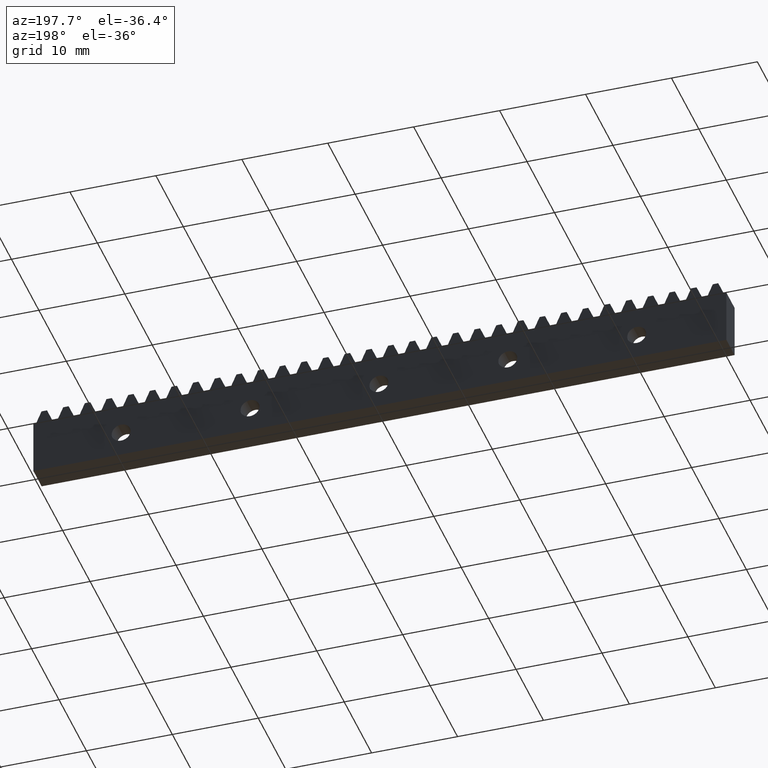
[diagram: clean part render]
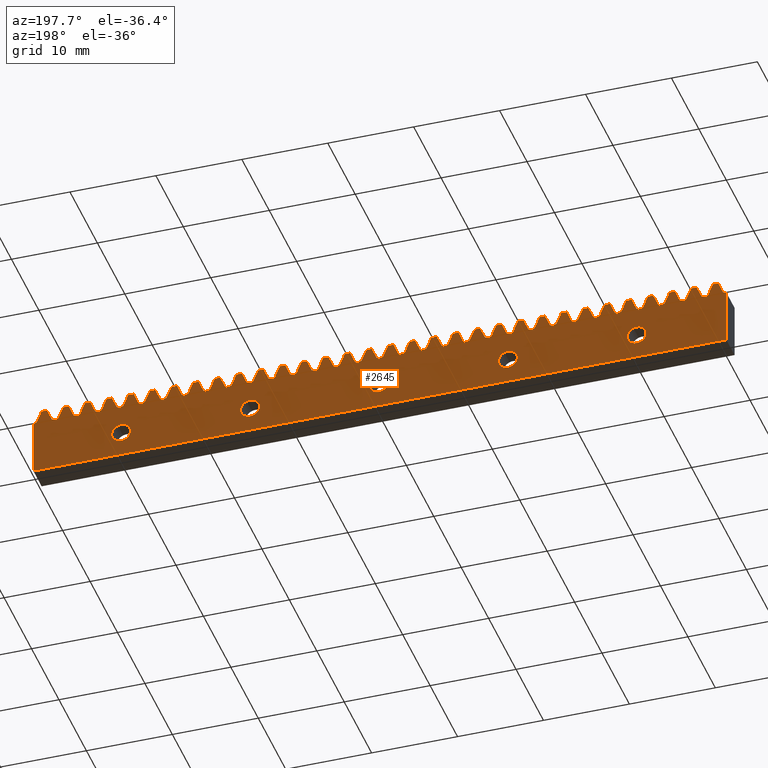
[diagram: same view with one face highlighted and labeled with its STEP entity id]
A machine part, auxiliary view. The second image highlights one B-rep face of the part: STEP entity #2645.
In plain terms, the highlighted face is a freeform B-spline surface patch.
Its self-contained STEP definition (entity closure, byte-faithful):
#94=CARTESIAN_POINT('',(-31.097948278254499,-3.816392E-016,3.067153393644593));
#95=VERTEX_POINT('',#94);
#101=CARTESIAN_POINT('',(-30.0,-4.440892E-016,4.100000000000001));
#102=VERTEX_POINT('',#101);
#103=CARTESIAN_POINT('',(-30.0,-4.440892E-016,4.100000000000001));
#104=CARTESIAN_POINT('',(-31.034776673301188,-4.440892E-016,4.100000000000001));
#105=CARTESIAN_POINT('',(-31.097948278254496,-3.816392E-016,3.067153393644593));
#113=(BOUNDED_CURVE()B_SPLINE_CURVE(2,(#103,#104,#105),.UNSPECIFIED.,.F.,.U.)B_SPLINE_CURVE_WITH_KNOTS((3,3),(0.500000000000000,0.739332962192857),.UNSPECIFIED.)CURVE()GEOMETRIC_REPRESENTATION_ITEM()RATIONAL_B_SPLINE_CURVE((1.0,0.719603993340703,0.976072041567948))REPRESENTATION_ITEM(''));
#114=EDGE_CURVE('',#102,#95,#113,.T.);
#116=CARTESIAN_POINT('',(-29.613220228045009,-3.790030E-016,4.029757936607650));
#117=VERTEX_POINT('',#116);
#118=CARTESIAN_POINT('',(-29.613220228045005,-3.790030E-016,4.029757936607651));
#119=CARTESIAN_POINT('',(-29.800231875189450,-4.440892E-016,4.100000000000000));
#120=CARTESIAN_POINT('',(-30.0,-4.440892E-016,4.100000000000001));
#128=(BOUNDED_CURVE()B_SPLINE_CURVE(2,(#118,#119,#120),.UNSPECIFIED.,.F.,.U.)B_SPLINE_CURVE_WITH_KNOTS((3,3),(0.440284170860789,0.500000000000000),.UNSPECIFIED.)CURVE()GEOMETRIC_REPRESENTATION_ITEM()RATIONAL_B_SPLINE_CURVE((0.893499554589116,0.930038554357210,1.0))REPRESENTATION_ITEM(''));
#129=EDGE_CURVE('',#117,#102,#128,.T.);
#179=CARTESIAN_POINT('',(-30.0,-4.440892E-016,1.900000000000000));
#180=VERTEX_POINT('',#179);
#181=CARTESIAN_POINT('',(-30.0,-4.440892E-016,1.900000000000000));
#182=CARTESIAN_POINT('',(-28.900000000000006,-4.440892E-016,1.900000000000000));
#183=CARTESIAN_POINT('',(-28.899999999999999,-4.440892E-016,3.0));
#184=CARTESIAN_POINT('',(-28.899999999999995,-4.440892E-016,3.761870555067447));
#185=CARTESIAN_POINT('',(-29.613220228045009,-3.790030E-016,4.029757936607651));
#193=(BOUNDED_CURVE()B_SPLINE_CURVE(2,(#181,#182,#183,#184,#185),.UNSPECIFIED.,.F.,.U.)B_SPLINE_CURVE_WITH_KNOTS((3,2,3),(0.0,0.250000000000000,0.440284170860789),.UNSPECIFIED.)CURVE()GEOMETRIC_REPRESENTATION_ITEM()RATIONAL_B_SPLINE_CURVE((1.0,0.707106781186548,1.0,0.777068226829338,0.893499554589116))REPRESENTATION_ITEM(''));
#194=EDGE_CURVE('',#180,#117,#193,.T.);
#196=CARTESIAN_POINT('',(-31.097948278254499,-3.816392E-016,3.067153393644592));
#197=CARTESIAN_POINT('',(-31.099999999999998,-4.440892E-016,3.033608039785136));
#198=CARTESIAN_POINT('',(-31.100000000000001,-4.440892E-016,3.0));
#199=CARTESIAN_POINT('',(-31.100000000000001,-4.440892E-016,1.900000000000000));
#200=CARTESIAN_POINT('',(-30.0,-4.440892E-016,1.900000000000000));
#208=(BOUNDED_CURVE()B_SPLINE_CURVE(2,(#196,#197,#198,#199,#200),.UNSPECIFIED.,.F.,.U.)B_SPLINE_CURVE_WITH_KNOTS((3,2,3),(0.739332962192858,0.750000000000000,1.0),.UNSPECIFIED.)CURVE()GEOMETRIC_REPRESENTATION_ITEM()RATIONAL_B_SPLINE_CURVE((0.976072041567948,0.987502787845845,1.0,0.707106781186548,1.0))REPRESENTATION_ITEM(''));
#209=EDGE_CURVE('',#95,#180,#208,.T.);
#422=CARTESIAN_POINT('',(-16.097948278254499,-3.816392E-016,3.067153393644593));
#423=VERTEX_POINT('',#422);
#429=CARTESIAN_POINT('',(-15.0,-4.440892E-016,4.100000000000001));
#430=VERTEX_POINT('',#429);
#431=CARTESIAN_POINT('',(-15.0,-4.440892E-016,4.100000000000001));
#432=CARTESIAN_POINT('',(-16.034776673301199,-4.440892E-016,4.100000000000001));
#433=CARTESIAN_POINT('',(-16.097948278254496,-3.816392E-016,3.067153393644593));
#441=(BOUNDED_CURVE()B_SPLINE_CURVE(2,(#431,#432,#433),.UNSPECIFIED.,.F.,.U.)B_SPLINE_CURVE_WITH_KNOTS((3,3),(0.500000000000000,0.739332962192857),.UNSPECIFIED.)CURVE()GEOMETRIC_REPRESENTATION_ITEM()RATIONAL_B_SPLINE_CURVE((1.0,0.719603993340703,0.976072041567948))REPRESENTATION_ITEM(''));
#442=EDGE_CURVE('',#430,#423,#441,.T.);
#444=CARTESIAN_POINT('',(-14.613220228045011,-3.790030E-016,4.029757936607650));
#445=VERTEX_POINT('',#444);
#446=CARTESIAN_POINT('',(-14.613220228045011,-3.790030E-016,4.029757936607649));
#447=CARTESIAN_POINT('',(-14.800231875189452,-4.440892E-016,4.100000000000001));
#448=CARTESIAN_POINT('',(-15.0,-4.440892E-016,4.100000000000001));
#456=(BOUNDED_CURVE()B_SPLINE_CURVE(2,(#446,#447,#448),.UNSPECIFIED.,.F.,.U.)B_SPLINE_CURVE_WITH_KNOTS((3,3),(0.440284170860790,0.500000000000000),.UNSPECIFIED.)CURVE()GEOMETRIC_REPRESENTATION_ITEM()RATIONAL_B_SPLINE_CURVE((0.893499554589116,0.930038554357210,1.0))REPRESENTATION_ITEM(''));
#457=EDGE_CURVE('',#445,#430,#456,.T.);
#507=CARTESIAN_POINT('',(-15.0,-4.440892E-016,1.900000000000000));
#508=VERTEX_POINT('',#507);
#509=CARTESIAN_POINT('',(-15.0,-4.440892E-016,1.900000000000000));
#510=CARTESIAN_POINT('',(-13.899999999999999,-4.440892E-016,1.900000000000000));
#511=CARTESIAN_POINT('',(-13.900000000000000,-4.440892E-016,3.0));
#512=CARTESIAN_POINT('',(-13.899999999999999,-4.440892E-016,3.761870555067449));
#513=CARTESIAN_POINT('',(-14.613220228045011,-3.790030E-016,4.029757936607649));
#521=(BOUNDED_CURVE()B_SPLINE_CURVE(2,(#509,#510,#511,#512,#513),.UNSPECIFIED.,.F.,.U.)B_SPLINE_CURVE_WITH_KNOTS((3,2,3),(0.0,0.250000000000000,0.440284170860790),.UNSPECIFIED.)CURVE()GEOMETRIC_REPRESENTATION_ITEM()RATIONAL_B_SPLINE_CURVE((1.0,0.707106781186548,1.0,0.777068226829337,0.893499554589116))REPRESENTATION_ITEM(''));
#522=EDGE_CURVE('',#508,#445,#521,.T.);
#524=CARTESIAN_POINT('',(-16.097948278254503,-3.816392E-016,3.067153393644592));
#525=CARTESIAN_POINT('',(-16.100000000000005,-4.440892E-016,3.033608039785136));
#526=CARTESIAN_POINT('',(-16.100000000000001,-4.440892E-016,3.0));
#527=CARTESIAN_POINT('',(-16.100000000000005,-4.440892E-016,1.900000000000000));
#528=CARTESIAN_POINT('',(-15.0,-4.440892E-016,1.900000000000000));
#536=(BOUNDED_CURVE()B_SPLINE_CURVE(2,(#524,#525,#526,#527,#528),.UNSPECIFIED.,.F.,.U.)B_SPLINE_CURVE_WITH_KNOTS((3,2,3),(0.739332962192858,0.750000000000000,1.0),.UNSPECIFIED.)CURVE()GEOMETRIC_REPRESENTATION_ITEM()RATIONAL_B_SPLINE_CURVE((0.976072041567948,0.987502787845845,1.0,0.707106781186548,1.0))REPRESENTATION_ITEM(''));
#537=EDGE_CURVE('',#423,#508,#536,.T.);
#750=CARTESIAN_POINT('',(-1.097948278254497,-3.816392E-016,3.067153393644593));
#751=VERTEX_POINT('',#750);
#757=CARTESIAN_POINT('',(0.0,-4.440892E-016,4.100000000000001));
#758=VERTEX_POINT('',#757);
#759=CARTESIAN_POINT('',(0.0,-4.440892E-016,4.100000000000001));
#760=CARTESIAN_POINT('',(-1.034776673301193,-4.440892E-016,4.100000000000001));
#761=CARTESIAN_POINT('',(-1.097948278254497,-3.816392E-016,3.067153393644593));
#769=(BOUNDED_CURVE()B_SPLINE_CURVE(2,(#759,#760,#761),.UNSPECIFIED.,.F.,.U.)B_SPLINE_CURVE_WITH_KNOTS((3,3),(0.500000000000000,0.739332962192857),.UNSPECIFIED.)CURVE()GEOMETRIC_REPRESENTATION_ITEM()RATIONAL_B_SPLINE_CURVE((1.0,0.719603993340703,0.976072041567948))REPRESENTATION_ITEM(''));
#770=EDGE_CURVE('',#758,#751,#769,.T.);
#772=CARTESIAN_POINT('',(0.386779771954991,-3.790030E-016,4.029757936607650));
#773=VERTEX_POINT('',#772);
#774=CARTESIAN_POINT('',(0.386779771954991,-3.790030E-016,4.029757936607650));
#775=CARTESIAN_POINT('',(0.199768124810553,-4.440892E-016,4.100000000000001));
#776=CARTESIAN_POINT('',(0.0,-4.440892E-016,4.100000000000001));
#784=(BOUNDED_CURVE()B_SPLINE_CURVE(2,(#774,#775,#776),.UNSPECIFIED.,.F.,.U.)B_SPLINE_CURVE_WITH_KNOTS((3,3),(0.440284170860790,0.500000000000000),.UNSPECIFIED.)CURVE()GEOMETRIC_REPRESENTATION_ITEM()RATIONAL_B_SPLINE_CURVE((0.893499554589116,0.930038554357210,1.0))REPRESENTATION_ITEM(''));
#785=EDGE_CURVE('',#773,#758,#784,.T.);
#835=CARTESIAN_POINT('',(0.0,-4.440892E-016,1.900000000000000));
#836=VERTEX_POINT('',#835);
#837=CARTESIAN_POINT('',(0.0,-4.440892E-016,1.900000000000000));
#838=CARTESIAN_POINT('',(1.100000000000000,-4.440892E-016,1.900000000000000));
#839=CARTESIAN_POINT('',(1.100000000000000,-4.440892E-016,3.0));
#840=CARTESIAN_POINT('',(1.100000000000000,-4.440892E-016,3.761870555067449));
#841=CARTESIAN_POINT('',(0.386779771954991,-3.790030E-016,4.029757936607650));
#849=(BOUNDED_CURVE()B_SPLINE_CURVE(2,(#837,#838,#839,#840,#841),.UNSPECIFIED.,.F.,.U.)B_SPLINE_CURVE_WITH_KNOTS((3,2,3),(0.0,0.250000000000000,0.440284170860790),.UNSPECIFIED.)CURVE()GEOMETRIC_REPRESENTATION_ITEM()RATIONAL_B_SPLINE_CURVE((1.0,0.707106781186548,1.0,0.777068226829338,0.893499554589116))REPRESENTATION_ITEM(''));
#850=EDGE_CURVE('',#836,#773,#849,.T.);
#852=CARTESIAN_POINT('',(-1.097948278254497,-3.816392E-016,3.067153393644592));
#853=CARTESIAN_POINT('',(-1.100000000000000,-4.440892E-016,3.033608039785136));
#854=CARTESIAN_POINT('',(-1.100000000000000,-4.440892E-016,3.0));
#855=CARTESIAN_POINT('',(-1.100000000000000,-4.440892E-016,1.900000000000000));
#856=CARTESIAN_POINT('',(0.0,-4.440892E-016,1.900000000000000));
#864=(BOUNDED_CURVE()B_SPLINE_CURVE(2,(#852,#853,#854,#855,#856),.UNSPECIFIED.,.F.,.U.)B_SPLINE_CURVE_WITH_KNOTS((3,2,3),(0.739332962192858,0.750000000000000,1.0),.UNSPECIFIED.)CURVE()GEOMETRIC_REPRESENTATION_ITEM()RATIONAL_B_SPLINE_CURVE((0.976072041567948,0.987502787845845,1.0,0.707106781186548,1.0))REPRESENTATION_ITEM(''));
#865=EDGE_CURVE('',#751,#836,#864,.T.);
#1078=CARTESIAN_POINT('',(13.902051721745501,-3.816392E-016,3.067153393644593));
#1079=VERTEX_POINT('',#1078);
#1085=CARTESIAN_POINT('',(15.0,-4.440892E-016,4.100000000000001));
#1086=VERTEX_POINT('',#1085);
#1087=CARTESIAN_POINT('',(15.0,-4.440892E-016,4.100000000000001));
#1088=CARTESIAN_POINT('',(13.965223326698803,-4.440892E-016,4.100000000000001));
#1089=CARTESIAN_POINT('',(13.902051721745504,-3.816392E-016,3.067153393644593));
#1097=(BOUNDED_CURVE()B_SPLINE_CURVE(2,(#1087,#1088,#1089),.UNSPECIFIED.,.F.,.U.)B_SPLINE_CURVE_WITH_KNOTS((3,3),(0.500000000000000,0.739332962192857),.UNSPECIFIED.)CURVE()GEOMETRIC_REPRESENTATION_ITEM()RATIONAL_B_SPLINE_CURVE((1.0,0.719603993340703,0.976072041567948))REPRESENTATION_ITEM(''));
#1098=EDGE_CURVE('',#1086,#1079,#1097,.T.);
#1100=CARTESIAN_POINT('',(15.386779771955000,-3.790030E-016,4.029757936607650));
#1101=VERTEX_POINT('',#1100);
#1102=CARTESIAN_POINT('',(15.386779771954993,-3.790030E-016,4.029757936607651));
#1103=CARTESIAN_POINT('',(15.199768124810552,-4.440892E-016,4.100000000000001));
#1104=CARTESIAN_POINT('',(15.0,-4.440892E-016,4.100000000000001));
#1112=(BOUNDED_CURVE()B_SPLINE_CURVE(2,(#1102,#1103,#1104),.UNSPECIFIED.,.F.,.U.)B_SPLINE_CURVE_WITH_KNOTS((3,3),(0.440284170860789,0.500000000000000),.UNSPECIFIED.)CURVE()GEOMETRIC_REPRESENTATION_ITEM()RATIONAL_B_SPLINE_CURVE((0.893499554589116,0.930038554357210,1.0))REPRESENTATION_ITEM(''));
#1113=EDGE_CURVE('',#1101,#1086,#1112,.T.);
#1163=CARTESIAN_POINT('',(15.0,-4.440892E-016,1.900000000000000));
#1164=VERTEX_POINT('',#1163);
#1165=CARTESIAN_POINT('',(15.0,-4.440892E-016,1.900000000000000));
#1166=CARTESIAN_POINT('',(16.100000000000005,-4.440892E-016,1.900000000000000));
#1167=CARTESIAN_POINT('',(16.100000000000001,-4.440892E-016,3.0));
#1168=CARTESIAN_POINT('',(16.100000000000001,-4.440892E-016,3.761870555067447));
#1169=CARTESIAN_POINT('',(15.386779771955002,-3.790030E-016,4.029757936607651));
#1177=(BOUNDED_CURVE()B_SPLINE_CURVE(2,(#1165,#1166,#1167,#1168,#1169),.UNSPECIFIED.,.F.,.U.)B_SPLINE_CURVE_WITH_KNOTS((3,2,3),(0.0,0.250000000000000,0.440284170860789),.UNSPECIFIED.)CURVE()GEOMETRIC_REPRESENTATION_ITEM()RATIONAL_B_SPLINE_CURVE((1.0,0.707106781186548,1.0,0.777068226829338,0.893499554589116))REPRESENTATION_ITEM(''));
#1178=EDGE_CURVE('',#1164,#1101,#1177,.T.);
#1180=CARTESIAN_POINT('',(13.902051721745501,-3.816392E-016,3.067153393644592));
#1181=CARTESIAN_POINT('',(13.900000000000004,-4.440892E-016,3.033608039785136));
#1182=CARTESIAN_POINT('',(13.900000000000000,-4.440892E-016,3.0));
#1183=CARTESIAN_POINT('',(13.899999999999999,-4.440892E-016,1.900000000000000));
#1184=CARTESIAN_POINT('',(15.0,-4.440892E-016,1.900000000000000));
#1192=(BOUNDED_CURVE()B_SPLINE_CURVE(2,(#1180,#1181,#1182,#1183,#1184),.UNSPECIFIED.,.F.,.U.)B_SPLINE_CURVE_WITH_KNOTS((3,2,3),(0.739332962192858,0.750000000000000,1.0),.UNSPECIFIED.)CURVE()GEOMETRIC_REPRESENTATION_ITEM()RATIONAL_B_SPLINE_CURVE((0.976072041567948,0.987502787845845,1.0,0.707106781186548,1.0))REPRESENTATION_ITEM(''));
#1193=EDGE_CURVE('',#1079,#1164,#1192,.T.);
#1406=CARTESIAN_POINT('',(28.902051721745501,-3.816392E-016,3.067153393644593));
#1407=VERTEX_POINT('',#1406);
#1413=CARTESIAN_POINT('',(30.0,-4.440892E-016,4.100000000000001));
#1414=VERTEX_POINT('',#1413);
#1415=CARTESIAN_POINT('',(30.0,-4.440892E-016,4.100000000000001));
#1416=CARTESIAN_POINT('',(28.965223326698805,-4.440892E-016,4.100000000000001));
#1417=CARTESIAN_POINT('',(28.902051721745501,-3.816392E-016,3.067153393644593));
#1425=(BOUNDED_CURVE()B_SPLINE_CURVE(2,(#1415,#1416,#1417),.UNSPECIFIED.,.F.,.U.)B_SPLINE_CURVE_WITH_KNOTS((3,3),(0.500000000000000,0.739332962192857),.UNSPECIFIED.)CURVE()GEOMETRIC_REPRESENTATION_ITEM()RATIONAL_B_SPLINE_CURVE((1.0,0.719603993340703,0.976072041567948))REPRESENTATION_ITEM(''));
#1426=EDGE_CURVE('',#1414,#1407,#1425,.T.);
#1428=CARTESIAN_POINT('',(30.386779771954991,-3.790030E-016,4.029757936607650));
#1429=VERTEX_POINT('',#1428);
#1430=CARTESIAN_POINT('',(30.386779771954988,-3.790030E-016,4.029757936607651));
#1431=CARTESIAN_POINT('',(30.199768124810547,-4.440892E-016,4.100000000000001));
#1432=CARTESIAN_POINT('',(30.0,-4.440892E-016,4.100000000000001));
#1440=(BOUNDED_CURVE()B_SPLINE_CURVE(2,(#1430,#1431,#1432),.UNSPECIFIED.,.F.,.U.)B_SPLINE_CURVE_WITH_KNOTS((3,3),(0.440284170860789,0.500000000000000),.UNSPECIFIED.)CURVE()GEOMETRIC_REPRESENTATION_ITEM()RATIONAL_B_SPLINE_CURVE((0.893499554589116,0.930038554357210,1.0))REPRESENTATION_ITEM(''));
#1441=EDGE_CURVE('',#1429,#1414,#1440,.T.);
#1491=CARTESIAN_POINT('',(30.0,-4.440892E-016,1.900000000000000));
#1492=VERTEX_POINT('',#1491);
#1493=CARTESIAN_POINT('',(30.0,-4.440892E-016,1.900000000000000));
#1494=CARTESIAN_POINT('',(31.100000000000001,-4.440892E-016,1.900000000000000));
#1495=CARTESIAN_POINT('',(31.100000000000001,-4.440892E-016,3.0));
#1496=CARTESIAN_POINT('',(31.099999999999991,-4.440892E-016,3.761870555067447));
#1497=CARTESIAN_POINT('',(30.386779771954995,-3.790030E-016,4.029757936607651));
#1505=(BOUNDED_CURVE()B_SPLINE_CURVE(2,(#1493,#1494,#1495,#1496,#1497),.UNSPECIFIED.,.F.,.U.)B_SPLINE_CURVE_WITH_KNOTS((3,2,3),(0.0,0.250000000000000,0.440284170860789),.UNSPECIFIED.)CURVE()GEOMETRIC_REPRESENTATION_ITEM()RATIONAL_B_SPLINE_CURVE((1.0,0.707106781186548,1.0,0.777068226829338,0.893499554589116))REPRESENTATION_ITEM(''));
#1506=EDGE_CURVE('',#1492,#1429,#1505,.T.);
#1508=CARTESIAN_POINT('',(28.902051721745497,-3.816392E-016,3.067153393644592));
#1509=CARTESIAN_POINT('',(28.899999999999995,-4.440892E-016,3.033608039785136));
#1510=CARTESIAN_POINT('',(28.899999999999999,-4.440892E-016,3.0));
#1511=CARTESIAN_POINT('',(28.900000000000006,-4.440892E-016,1.900000000000000));
#1512=CARTESIAN_POINT('',(30.0,-4.440892E-016,1.900000000000000));
#1520=(BOUNDED_CURVE()B_SPLINE_CURVE(2,(#1508,#1509,#1510,#1511,#1512),.UNSPECIFIED.,.F.,.U.)B_SPLINE_CURVE_WITH_KNOTS((3,2,3),(0.739332962192858,0.750000000000000,1.0),.UNSPECIFIED.)CURVE()GEOMETRIC_REPRESENTATION_ITEM()RATIONAL_B_SPLINE_CURVE((0.976072041567948,0.987502787845845,1.0,0.707106781186548,1.0))REPRESENTATION_ITEM(''));
#1521=EDGE_CURVE('',#1407,#1492,#1520,.T.);
#1684=CARTESIAN_POINT('',(-44.457968436363323,0.0,8.399608008602465));
#1685=CARTESIAN_POINT('',(44.237976320274591,0.0,8.399608008602465));
#1686=CARTESIAN_POINT('',(-44.457968436363323,0.0,-0.399600580807829));
#1687=CARTESIAN_POINT('',(44.237976320274591,0.0,-0.399600580807829));
#1688=B_SPLINE_SURFACE_WITH_KNOTS('',1,1,((#1684,#1686),(#1685,#1687)),.UNSPECIFIED.,.F.,.F.,.U.,(2,2),(2,2),(0.0,88.695944756637914),(0.0,8.799208589410295),.UNSPECIFIED.);
#1689=CARTESIAN_POINT('',(-40.430000999999997,0.0,6.500000000000000));
#1690=VERTEX_POINT('',#1689);
#1691=CARTESIAN_POINT('',(-40.430000999999997,0.0,0.0));
#1692=VERTEX_POINT('',#1691);
#1693=CARTESIAN_POINT('',(-40.430000999999997,0.0,6.500000000000000));
#1694=CARTESIAN_POINT('',(-40.430000999999997,0.0,0.0));
#1695=QUASI_UNIFORM_CURVE('',1,(#1693,#1694),.UNSPECIFIED.,.F.,.U.);
#1696=EDGE_CURVE('',#1690,#1692,#1695,.T.);
#1697=ORIENTED_EDGE('',*,*,#1696,.F.);
#1698=CARTESIAN_POINT('',(-40.114998000000000,0.0,6.500000000000000));
#1699=VERTEX_POINT('',#1698);
#1700=CARTESIAN_POINT('',(-40.114998000000000,0.0,6.500000000000000));
#1701=CARTESIAN_POINT('',(-40.430000999999997,0.0,6.500000000000000));
#1702=QUASI_UNIFORM_CURVE('',1,(#1700,#1701),.UNSPECIFIED.,.F.,.U.);
#1703=EDGE_CURVE('',#1699,#1690,#1702,.T.);
#1704=ORIENTED_EDGE('',*,*,#1703,.F.);
#1705=CARTESIAN_POINT('',(-39.485000999999997,0.0,8.0));
#1706=VERTEX_POINT('',#1705);
#1707=CARTESIAN_POINT('',(-39.485000999999997,0.0,8.0));
#1708=CARTESIAN_POINT('',(-40.114998000000000,0.0,6.500000000000000));
#1709=QUASI_UNIFORM_CURVE('',1,(#1707,#1708),.UNSPECIFIED.,.F.,.U.);
#1710=EDGE_CURVE('',#1706,#1699,#1709,.T.);
#1711=ORIENTED_EDGE('',*,*,#1710,.F.);
#1712=CARTESIAN_POINT('',(-38.854996000000000,0.0,8.0));
#1713=VERTEX_POINT('',#1712);
#1714=CARTESIAN_POINT('',(-38.854996000000000,0.0,8.0));
#1715=CARTESIAN_POINT('',(-39.485000999999997,0.0,8.0));
#1716=QUASI_UNIFORM_CURVE('',1,(#1714,#1715),.UNSPECIFIED.,.F.,.U.);
#1717=EDGE_CURVE('',#1713,#1706,#1716,.T.);
#1718=ORIENTED_EDGE('',*,*,#1717,.F.);
#1719=CARTESIAN_POINT('',(-38.224998999999997,0.0,6.500000000000000));
#1720=VERTEX_POINT('',#1719);
#1721=CARTESIAN_POINT('',(-38.224998999999997,0.0,6.500000000000000));
#1722=CARTESIAN_POINT('',(-38.854996000000000,0.0,8.0));
#1723=QUASI_UNIFORM_CURVE('',1,(#1721,#1722),.UNSPECIFIED.,.F.,.U.);
#1724=EDGE_CURVE('',#1720,#1713,#1723,.T.);
#1725=ORIENTED_EDGE('',*,*,#1724,.F.);
#1726=CARTESIAN_POINT('',(-37.595002000000001,0.0,6.500007999999800));
#1727=VERTEX_POINT('',#1726);
#1728=CARTESIAN_POINT('',(-37.595002000000001,0.0,6.500007999999800));
#1729=CARTESIAN_POINT('',(-38.224998999999997,0.0,6.500000000000000));
#1730=QUASI_UNIFORM_CURVE('',1,(#1728,#1729),.UNSPECIFIED.,.F.,.U.);
#1731=EDGE_CURVE('',#1727,#1720,#1730,.T.);
#1732=ORIENTED_EDGE('',*,*,#1731,.F.);
#1733=CARTESIAN_POINT('',(-36.964996999999997,0.0,8.0));
#1734=VERTEX_POINT('',#1733);
#1735=CARTESIAN_POINT('',(-36.964996999999997,0.0,8.0));
#1736=CARTESIAN_POINT('',(-37.595002000000001,0.0,6.500007999999800));
#1737=QUASI_UNIFORM_CURVE('',1,(#1735,#1736),.UNSPECIFIED.,.F.,.U.);
#1738=EDGE_CURVE('',#1734,#1727,#1737,.T.);
#1739=ORIENTED_EDGE('',*,*,#1738,.F.);
#1740=CARTESIAN_POINT('',(-36.334999000000003,0.0,8.0));
#1741=VERTEX_POINT('',#1740);
#1742=CARTESIAN_POINT('',(-36.334999000000003,0.0,8.0));
#1743=CARTESIAN_POINT('',(-36.964996999999997,0.0,8.0));
#1744=QUASI_UNIFORM_CURVE('',1,(#1742,#1743),.UNSPECIFIED.,.F.,.U.);
#1745=EDGE_CURVE('',#1741,#1734,#1744,.T.);
#1746=ORIENTED_EDGE('',*,*,#1745,.F.);
#1747=CARTESIAN_POINT('',(-35.704994999999997,0.0,6.500000000000000));
#1748=VERTEX_POINT('',#1747);
#1749=CARTESIAN_POINT('',(-35.704994999999997,0.0,6.500000000000000));
#1750=CARTESIAN_POINT('',(-36.334999000000003,0.0,8.0));
#1751=QUASI_UNIFORM_CURVE('',1,(#1749,#1750),.UNSPECIFIED.,.F.,.U.);
#1752=EDGE_CURVE('',#1748,#1741,#1751,.T.);
#1753=ORIENTED_EDGE('',*,*,#1752,.F.);
#1754=CARTESIAN_POINT('',(-35.074997000000003,0.0,6.500000000000000));
#1755=VERTEX_POINT('',#1754);
#1756=CARTESIAN_POINT('',(-35.074997000000003,0.0,6.500000000000000));
#1757=CARTESIAN_POINT('',(-35.704994999999997,0.0,6.500000000000000));
#1758=QUASI_UNIFORM_CURVE('',1,(#1756,#1757),.UNSPECIFIED.,.F.,.U.);
#1759=EDGE_CURVE('',#1755,#1748,#1758,.T.);
#1760=ORIENTED_EDGE('',*,*,#1759,.F.);
#1761=CARTESIAN_POINT('',(-34.445000000000000,0.0,8.0));
#1762=VERTEX_POINT('',#1761);
#1763=CARTESIAN_POINT('',(-34.445000000000000,0.0,8.0));
#1764=CARTESIAN_POINT('',(-35.074997000000003,0.0,6.500000000000000));
#1765=QUASI_UNIFORM_CURVE('',1,(#1763,#1764),.UNSPECIFIED.,.F.,.U.);
#1766=EDGE_CURVE('',#1762,#1755,#1765,.T.);
#1767=ORIENTED_EDGE('',*,*,#1766,.F.);
#1768=CARTESIAN_POINT('',(-33.815002999999997,0.0,8.0));
#1769=VERTEX_POINT('',#1768);
#1770=CARTESIAN_POINT('',(-33.815002999999997,0.0,8.0));
#1771=CARTESIAN_POINT('',(-34.445000000000000,0.0,8.0));
#1772=QUASI_UNIFORM_CURVE('',1,(#1770,#1771),.UNSPECIFIED.,.F.,.U.);
#1773=EDGE_CURVE('',#1769,#1762,#1772,.T.);
#1774=ORIENTED_EDGE('',*,*,#1773,.F.);
#1775=CARTESIAN_POINT('',(-33.184998000000000,0.0,6.500000000000000));
#1776=VERTEX_POINT('',#1775);
#1777=CARTESIAN_POINT('',(-33.184998000000000,0.0,6.500000000000000));
#1778=CARTESIAN_POINT('',(-33.815002999999997,0.0,8.0));
#1779=QUASI_UNIFORM_CURVE('',1,(#1777,#1778),.UNSPECIFIED.,.F.,.U.);
#1780=EDGE_CURVE('',#1776,#1769,#1779,.T.);
#1781=ORIENTED_EDGE('',*,*,#1780,.F.);
#1782=CARTESIAN_POINT('',(-32.554996359983903,0.0,6.500000000000000));
#1783=VERTEX_POINT('',#1782);
#1784=CARTESIAN_POINT('',(-32.554996359983903,0.0,6.500000000000000));
#1785=CARTESIAN_POINT('',(-33.184998000000000,0.0,6.500000000000000));
#1786=QUASI_UNIFORM_CURVE('',1,(#1784,#1785),.UNSPECIFIED.,.F.,.U.);
#1787=EDGE_CURVE('',#1783,#1776,#1786,.T.);
#1788=ORIENTED_EDGE('',*,*,#1787,.F.);
#1789=CARTESIAN_POINT('',(-31.924996000000000,0.0,8.0));
#1790=VERTEX_POINT('',#1789);
#1791=CARTESIAN_POINT('',(-31.924996000000000,0.0,8.0));
#1792=CARTESIAN_POINT('',(-32.554996359983903,0.0,6.500000000000000));
#1793=QUASI_UNIFORM_CURVE('',1,(#1791,#1792),.UNSPECIFIED.,.F.,.U.);
#1794=EDGE_CURVE('',#1790,#1783,#1793,.T.);
#1795=ORIENTED_EDGE('',*,*,#1794,.F.);
#1796=CARTESIAN_POINT('',(-31.294998000000000,0.0,8.0));
#1797=VERTEX_POINT('',#1796);
#1798=CARTESIAN_POINT('',(-31.294998000000000,0.0,8.0));
#1799=CARTESIAN_POINT('',(-31.924996000000000,0.0,8.0));
#1800=QUASI_UNIFORM_CURVE('',1,(#1798,#1799),.UNSPECIFIED.,.F.,.U.);
#1801=EDGE_CURVE('',#1797,#1790,#1800,.T.);
#1802=ORIENTED_EDGE('',*,*,#1801,.F.);
#1803=CARTESIAN_POINT('',(-30.665001000000000,0.0,6.500000000000000));
#1804=VERTEX_POINT('',#1803);
#1805=CARTESIAN_POINT('',(-30.665001000000000,0.0,6.500000000000000));
#1806=CARTESIAN_POINT('',(-31.294998000000000,0.0,8.0));
#1807=QUASI_UNIFORM_CURVE('',1,(#1805,#1806),.UNSPECIFIED.,.F.,.U.);
#1808=EDGE_CURVE('',#1804,#1797,#1807,.T.);
#1809=ORIENTED_EDGE('',*,*,#1808,.F.);
#1810=CARTESIAN_POINT('',(-30.034996000000000,0.0,6.500000000000000));
#1811=VERTEX_POINT('',#1810);
#1812=CARTESIAN_POINT('',(-30.034996000000000,0.0,6.500000000000000));
#1813=CARTESIAN_POINT('',(-30.665001000000000,0.0,6.500000000000000));
#1814=QUASI_UNIFORM_CURVE('',1,(#1812,#1813),.UNSPECIFIED.,.F.,.U.);
#1815=EDGE_CURVE('',#1811,#1804,#1814,.T.);
#1816=ORIENTED_EDGE('',*,*,#1815,.F.);
#1817=CARTESIAN_POINT('',(-29.404999000000000,0.0,8.0));
#1818=VERTEX_POINT('',#1817);
#1819=CARTESIAN_POINT('',(-29.404999000000000,0.0,8.0));
#1820=CARTESIAN_POINT('',(-30.034996000000000,0.0,6.500000000000000));
#1821=QUASI_UNIFORM_CURVE('',1,(#1819,#1820),.UNSPECIFIED.,.F.,.U.);
#1822=EDGE_CURVE('',#1818,#1811,#1821,.T.);
#1823=ORIENTED_EDGE('',*,*,#1822,.F.);
#1824=CARTESIAN_POINT('',(-28.775002000000001,0.0,8.0));
#1825=VERTEX_POINT('',#1824);
#1826=CARTESIAN_POINT('',(-28.775002000000001,0.0,8.0));
#1827=CARTESIAN_POINT('',(-29.404999000000000,0.0,8.0));
#1828=QUASI_UNIFORM_CURVE('',1,(#1826,#1827),.UNSPECIFIED.,.F.,.U.);
#1829=EDGE_CURVE('',#1825,#1818,#1828,.T.);
#1830=ORIENTED_EDGE('',*,*,#1829,.F.);
#1831=CARTESIAN_POINT('',(-28.144997000000000,0.0,6.500000000000000));
#1832=VERTEX_POINT('',#1831);
#1833=CARTESIAN_POINT('',(-28.144997000000000,0.0,6.500000000000000));
#1834=CARTESIAN_POINT('',(-28.775002000000001,0.0,8.0));
#1835=QUASI_UNIFORM_CURVE('',1,(#1833,#1834),.UNSPECIFIED.,.F.,.U.);
#1836=EDGE_CURVE('',#1832,#1825,#1835,.T.);
#1837=ORIENTED_EDGE('',*,*,#1836,.F.);
#1838=CARTESIAN_POINT('',(-27.515000000000001,0.0,6.500007999999800));
#1839=VERTEX_POINT('',#1838);
#1840=CARTESIAN_POINT('',(-27.515000000000001,0.0,6.500007999999800));
#1841=CARTESIAN_POINT('',(-28.144997000000000,0.0,6.500000000000000));
#1842=QUASI_UNIFORM_CURVE('',1,(#1840,#1841),.UNSPECIFIED.,.F.,.U.);
#1843=EDGE_CURVE('',#1839,#1832,#1842,.T.);
#1844=ORIENTED_EDGE('',*,*,#1843,.F.);
#1845=CARTESIAN_POINT('',(-26.884995000000000,0.0,8.0));
#1846=VERTEX_POINT('',#1845);
#1847=CARTESIAN_POINT('',(-26.884995000000000,0.0,8.0));
#1848=CARTESIAN_POINT('',(-27.515000000000001,0.0,6.500007999999800));
#1849=QUASI_UNIFORM_CURVE('',1,(#1847,#1848),.UNSPECIFIED.,.F.,.U.);
#1850=EDGE_CURVE('',#1846,#1839,#1849,.T.);
#1851=ORIENTED_EDGE('',*,*,#1850,.F.);
#1852=CARTESIAN_POINT('',(-26.254998000000001,0.0,8.0));
#1853=VERTEX_POINT('',#1852);
#1854=CARTESIAN_POINT('',(-26.254998000000001,0.0,8.0));
#1855=CARTESIAN_POINT('',(-26.884995000000000,0.0,8.0));
#1856=QUASI_UNIFORM_CURVE('',1,(#1854,#1855),.UNSPECIFIED.,.F.,.U.);
#1857=EDGE_CURVE('',#1853,#1846,#1856,.T.);
#1858=ORIENTED_EDGE('',*,*,#1857,.F.);
#1859=CARTESIAN_POINT('',(-25.625000000000000,0.0,6.500000000000000));
#1860=VERTEX_POINT('',#1859);
#1861=CARTESIAN_POINT('',(-25.625000000000000,0.0,6.500000000000000));
#1862=CARTESIAN_POINT('',(-26.254998000000001,0.0,8.0));
#1863=QUASI_UNIFORM_CURVE('',1,(#1861,#1862),.UNSPECIFIED.,.F.,.U.);
#1864=EDGE_CURVE('',#1860,#1853,#1863,.T.);
#1865=ORIENTED_EDGE('',*,*,#1864,.F.);
#1866=CARTESIAN_POINT('',(-24.994994999999999,0.0,6.500000000000000));
#1867=VERTEX_POINT('',#1866);
#1868=CARTESIAN_POINT('',(-24.994994999999999,0.0,6.500000000000000));
#1869=CARTESIAN_POINT('',(-25.625000000000000,0.0,6.500000000000000));
#1870=QUASI_UNIFORM_CURVE('',1,(#1868,#1869),.UNSPECIFIED.,.F.,.U.);
#1871=EDGE_CURVE('',#1867,#1860,#1870,.T.);
#1872=ORIENTED_EDGE('',*,*,#1871,.F.);
#1873=CARTESIAN_POINT('',(-24.364998000000000,0.0,8.0));
#1874=VERTEX_POINT('',#1873);
#1875=CARTESIAN_POINT('',(-24.364998000000000,0.0,8.0));
#1876=CARTESIAN_POINT('',(-24.994994999999999,0.0,6.500000000000000));
#1877=QUASI_UNIFORM_CURVE('',1,(#1875,#1876),.UNSPECIFIED.,.F.,.U.);
#1878=EDGE_CURVE('',#1874,#1867,#1877,.T.);
#1879=ORIENTED_EDGE('',*,*,#1878,.F.);
#1880=CARTESIAN_POINT('',(-23.735001000000000,0.0,8.0));
#1881=VERTEX_POINT('',#1880);
#1882=CARTESIAN_POINT('',(-23.735001000000000,0.0,8.0));
#1883=CARTESIAN_POINT('',(-24.364998000000000,0.0,8.0));
#1884=QUASI_UNIFORM_CURVE('',1,(#1882,#1883),.UNSPECIFIED.,.F.,.U.);
#1885=EDGE_CURVE('',#1881,#1874,#1884,.T.);
#1886=ORIENTED_EDGE('',*,*,#1885,.F.);
#1887=CARTESIAN_POINT('',(-23.104996000000000,0.0,6.500000000000000));
#1888=VERTEX_POINT('',#1887);
#1889=CARTESIAN_POINT('',(-23.104996000000000,0.0,6.500000000000000));
#1890=CARTESIAN_POINT('',(-23.735001000000000,0.0,8.0));
#1891=QUASI_UNIFORM_CURVE('',1,(#1889,#1890),.UNSPECIFIED.,.F.,.U.);
#1892=EDGE_CURVE('',#1888,#1881,#1891,.T.);
#1893=ORIENTED_EDGE('',*,*,#1892,.F.);
#1894=CARTESIAN_POINT('',(-22.474999000000000,0.0,6.500007999999800));
#1895=VERTEX_POINT('',#1894);
#1896=CARTESIAN_POINT('',(-22.474999000000000,0.0,6.500007999999800));
#1897=CARTESIAN_POINT('',(-23.104996000000000,0.0,6.500000000000000));
#1898=QUASI_UNIFORM_CURVE('',1,(#1896,#1897),.UNSPECIFIED.,.F.,.U.);
#1899=EDGE_CURVE('',#1895,#1888,#1898,.T.);
#1900=ORIENTED_EDGE('',*,*,#1899,.F.);
#1901=CARTESIAN_POINT('',(-21.844997360026600,0.0,8.0));
#1902=VERTEX_POINT('',#1901);
#1903=CARTESIAN_POINT('',(-21.844997360026600,0.0,8.0));
#1904=CARTESIAN_POINT('',(-22.474999000000000,0.0,6.500007999999800));
#1905=QUASI_UNIFORM_CURVE('',1,(#1903,#1904),.UNSPECIFIED.,.F.,.U.);
#1906=EDGE_CURVE('',#1902,#1895,#1905,.T.);
#1907=ORIENTED_EDGE('',*,*,#1906,.F.);
#1908=CARTESIAN_POINT('',(-21.214997000000000,0.0,8.0));
#1909=VERTEX_POINT('',#1908);
#1910=CARTESIAN_POINT('',(-21.214997000000000,0.0,8.0));
#1911=CARTESIAN_POINT('',(-21.844997360026600,0.0,8.0));
#1912=QUASI_UNIFORM_CURVE('',1,(#1910,#1911),.UNSPECIFIED.,.F.,.U.);
#1913=EDGE_CURVE('',#1909,#1902,#1912,.T.);
#1914=ORIENTED_EDGE('',*,*,#1913,.F.);
#1915=CARTESIAN_POINT('',(-20.584999000000000,0.0,6.500000000000000));
#1916=VERTEX_POINT('',#1915);
#1917=CARTESIAN_POINT('',(-20.584999000000000,0.0,6.500000000000000));
#1918=CARTESIAN_POINT('',(-21.214997000000000,0.0,8.0));
#1919=QUASI_UNIFORM_CURVE('',1,(#1917,#1918),.UNSPECIFIED.,.F.,.U.);
#1920=EDGE_CURVE('',#1916,#1909,#1919,.T.);
#1921=ORIENTED_EDGE('',*,*,#1920,.F.);
#1922=CARTESIAN_POINT('',(-19.954995000000000,0.0,6.500000000000000));
#1923=VERTEX_POINT('',#1922);
#1924=CARTESIAN_POINT('',(-19.954995000000000,0.0,6.500000000000000));
#1925=CARTESIAN_POINT('',(-20.584999000000000,0.0,6.500000000000000));
#1926=QUASI_UNIFORM_CURVE('',1,(#1924,#1925),.UNSPECIFIED.,.F.,.U.);
#1927=EDGE_CURVE('',#1923,#1916,#1926,.T.);
#1928=ORIENTED_EDGE('',*,*,#1927,.F.);
#1929=CARTESIAN_POINT('',(-19.324997000000000,0.0,8.0));
#1930=VERTEX_POINT('',#1929);
#1931=CARTESIAN_POINT('',(-19.324997000000000,0.0,8.0));
#1932=CARTESIAN_POINT('',(-19.954995000000000,0.0,6.500000000000000));
#1933=QUASI_UNIFORM_CURVE('',1,(#1931,#1932),.UNSPECIFIED.,.F.,.U.);
#1934=EDGE_CURVE('',#1930,#1923,#1933,.T.);
#1935=ORIENTED_EDGE('',*,*,#1934,.F.);
#1936=CARTESIAN_POINT('',(-18.695000000000000,0.0,8.0));
#1937=VERTEX_POINT('',#1936);
#1938=CARTESIAN_POINT('',(-18.695000000000000,0.0,8.0));
#1939=CARTESIAN_POINT('',(-19.324997000000000,0.0,8.0));
#1940=QUASI_UNIFORM_CURVE('',1,(#1938,#1939),.UNSPECIFIED.,.F.,.U.);
#1941=EDGE_CURVE('',#1937,#1930,#1940,.T.);
#1942=ORIENTED_EDGE('',*,*,#1941,.F.);
#1943=CARTESIAN_POINT('',(-18.064995000000000,0.0,6.500000000000000));
#1944=VERTEX_POINT('',#1943);
#1945=CARTESIAN_POINT('',(-18.064995000000000,0.0,6.500000000000000));
#1946=CARTESIAN_POINT('',(-18.695000000000000,0.0,8.0));
#1947=QUASI_UNIFORM_CURVE('',1,(#1945,#1946),.UNSPECIFIED.,.F.,.U.);
#1948=EDGE_CURVE('',#1944,#1937,#1947,.T.);
#1949=ORIENTED_EDGE('',*,*,#1948,.F.);
#1950=CARTESIAN_POINT('',(-17.434998000000050,0.0,6.500007999999800));
#1951=VERTEX_POINT('',#1950);
#1952=CARTESIAN_POINT('',(-17.434998000000050,0.0,6.500007999999800));
#1953=CARTESIAN_POINT('',(-18.064995000000000,0.0,6.500000000000000));
#1954=QUASI_UNIFORM_CURVE('',1,(#1952,#1953),.UNSPECIFIED.,.F.,.U.);
#1955=EDGE_CURVE('',#1951,#1944,#1954,.T.);
#1956=ORIENTED_EDGE('',*,*,#1955,.F.);
#1957=CARTESIAN_POINT('',(-16.805001000000001,0.0,8.0));
#1958=VERTEX_POINT('',#1957);
#1959=CARTESIAN_POINT('',(-16.805001000000001,0.0,8.0));
#1960=CARTESIAN_POINT('',(-17.434998000000050,0.0,6.500007999999800));
#1961=QUASI_UNIFORM_CURVE('',1,(#1959,#1960),.UNSPECIFIED.,.F.,.U.);
#1962=EDGE_CURVE('',#1958,#1951,#1961,.T.);
#1963=ORIENTED_EDGE('',*,*,#1962,.F.);
#1964=CARTESIAN_POINT('',(-16.174996000000000,0.0,8.000007999999800));
#1965=VERTEX_POINT('',#1964);
#1966=CARTESIAN_POINT('',(-16.174996000000000,0.0,8.000007999999800));
#1967=CARTESIAN_POINT('',(-16.805001000000001,0.0,8.0));
#1968=QUASI_UNIFORM_CURVE('',1,(#1966,#1967),.UNSPECIFIED.,.F.,.U.);
#1969=EDGE_CURVE('',#1965,#1958,#1968,.T.);
#1970=ORIENTED_EDGE('',*,*,#1969,.F.);
#1971=CARTESIAN_POINT('',(-15.544987639973399,0.0,6.500000000000000));
#1972=VERTEX_POINT('',#1971);
#1973=CARTESIAN_POINT('',(-15.544987639973399,0.0,6.500000000000000));
#1974=CARTESIAN_POINT('',(-16.174996000000000,0.0,8.000007999999800));
#1975=QUASI_UNIFORM_CURVE('',1,(#1973,#1974),.UNSPECIFIED.,.F.,.U.);
#1976=EDGE_CURVE('',#1972,#1965,#1975,.T.);
#1977=ORIENTED_EDGE('',*,*,#1976,.F.);
#1978=CARTESIAN_POINT('',(-14.915001000000000,0.0,6.500000000000000));
#1979=VERTEX_POINT('',#1978);
#1980=CARTESIAN_POINT('',(-14.915001000000000,0.0,6.500000000000000));
#1981=CARTESIAN_POINT('',(-15.544987639973399,0.0,6.500000000000000));
#1982=QUASI_UNIFORM_CURVE('',1,(#1980,#1981),.UNSPECIFIED.,.F.,.U.);
#1983=EDGE_CURVE('',#1979,#1972,#1982,.T.);
#1984=ORIENTED_EDGE('',*,*,#1983,.F.);
#1985=CARTESIAN_POINT('',(-14.284996000000000,0.0,8.0));
#1986=VERTEX_POINT('',#1985);
#1987=CARTESIAN_POINT('',(-14.284996000000000,0.0,8.0));
#1988=CARTESIAN_POINT('',(-14.915001000000000,0.0,6.500000000000000));
#1989=QUASI_UNIFORM_CURVE('',1,(#1987,#1988),.UNSPECIFIED.,.F.,.U.);
#1990=EDGE_CURVE('',#1986,#1979,#1989,.T.);
#1991=ORIENTED_EDGE('',*,*,#1990,.F.);
#1992=CARTESIAN_POINT('',(-13.654987640016060,0.0,8.0));
#1993=VERTEX_POINT('',#1992);
#1994=CARTESIAN_POINT('',(-13.654987640016060,0.0,8.0));
#1995=CARTESIAN_POINT('',(-14.284996000000000,0.0,8.0));
#1996=QUASI_UNIFORM_CURVE('',1,(#1994,#1995),.UNSPECIFIED.,.F.,.U.);
#1997=EDGE_CURVE('',#1993,#1986,#1996,.T.);
#1998=ORIENTED_EDGE('',*,*,#1997,.F.);
#1999=CARTESIAN_POINT('',(-13.024994000000101,0.0,6.500000000000000));
#2000=VERTEX_POINT('',#1999);
#2001=CARTESIAN_POINT('',(-13.024994000000101,0.0,6.500000000000000));
#2002=CARTESIAN_POINT('',(-13.654987640016060,0.0,8.0));
#2003=QUASI_UNIFORM_CURVE('',1,(#2001,#2002),.UNSPECIFIED.,.F.,.U.);
#2004=EDGE_CURVE('',#2000,#1993,#2003,.T.);
#2005=ORIENTED_EDGE('',*,*,#2004,.F.);
#2006=CARTESIAN_POINT('',(-12.394997000000201,0.0,6.500000000000000));
#2007=VERTEX_POINT('',#2006);
#2008=CARTESIAN_POINT('',(-12.394997000000201,0.0,6.500000000000000));
#2009=CARTESIAN_POINT('',(-13.024994000000101,0.0,6.500000000000000));
#2010=QUASI_UNIFORM_CURVE('',1,(#2008,#2009),.UNSPECIFIED.,.F.,.U.);
#2011=EDGE_CURVE('',#2007,#2000,#2010,.T.);
#2012=ORIENTED_EDGE('',*,*,#2011,.F.);
#2013=CARTESIAN_POINT('',(-11.765000000000001,0.0,8.0));
#2014=VERTEX_POINT('',#2013);
#2015=CARTESIAN_POINT('',(-11.765000000000001,0.0,8.0));
#2016=CARTESIAN_POINT('',(-12.394997000000201,0.0,6.500000000000000));
#2017=QUASI_UNIFORM_CURVE('',1,(#2015,#2016),.UNSPECIFIED.,.F.,.U.);
#2018=EDGE_CURVE('',#2014,#2007,#2017,.T.);
#2019=ORIENTED_EDGE('',*,*,#2018,.F.);
#2020=CARTESIAN_POINT('',(-11.134995000000201,0.0,8.000007999999800));
#2021=VERTEX_POINT('',#2020);
#2022=CARTESIAN_POINT('',(-11.134995000000201,0.0,8.000007999999800));
#2023=CARTESIAN_POINT('',(-11.765000000000001,0.0,8.0));
#2024=QUASI_UNIFORM_CURVE('',1,(#2022,#2023),.UNSPECIFIED.,.F.,.U.);
#2025=EDGE_CURVE('',#2021,#2014,#2024,.T.);
#2026=ORIENTED_EDGE('',*,*,#2025,.F.);
#2027=CARTESIAN_POINT('',(-10.504986639973399,0.0,6.500000000000000));
#2028=VERTEX_POINT('',#2027);
#2029=CARTESIAN_POINT('',(-10.504986639973399,0.0,6.500000000000000));
#2030=CARTESIAN_POINT('',(-11.134995000000201,0.0,8.000007999999800));
#2031=QUASI_UNIFORM_CURVE('',1,(#2029,#2030),.UNSPECIFIED.,.F.,.U.);
#2032=EDGE_CURVE('',#2028,#2021,#2031,.T.);
#2033=ORIENTED_EDGE('',*,*,#2032,.F.);
#2034=CARTESIAN_POINT('',(-9.875000000000000,0.0,6.500007999999800));
#2035=VERTEX_POINT('',#2034);
#2036=CARTESIAN_POINT('',(-9.875000000000000,0.0,6.500007999999800));
#2037=CARTESIAN_POINT('',(-10.504986639973399,0.0,6.500000000000000));
#2038=QUASI_UNIFORM_CURVE('',1,(#2036,#2037),.UNSPECIFIED.,.F.,.U.);
#2039=EDGE_CURVE('',#2035,#2028,#2038,.T.);
#2040=ORIENTED_EDGE('',*,*,#2039,.F.);
#2041=CARTESIAN_POINT('',(-9.244995000000200,0.0,8.0));
#2042=VERTEX_POINT('',#2041);
#2043=CARTESIAN_POINT('',(-9.244995000000200,0.0,8.0));
#2044=CARTESIAN_POINT('',(-9.875000000000000,0.0,6.500007999999800));
#2045=QUASI_UNIFORM_CURVE('',1,(#2043,#2044),.UNSPECIFIED.,.F.,.U.);
#2046=EDGE_CURVE('',#2042,#2035,#2045,.T.);
#2047=ORIENTED_EDGE('',*,*,#2046,.F.);
#2048=CARTESIAN_POINT('',(-8.614987640010741,0.0,8.0));
#2049=VERTEX_POINT('',#2048);
#2050=CARTESIAN_POINT('',(-8.614987640010741,0.0,8.0));
#2051=CARTESIAN_POINT('',(-9.244995000000200,0.0,8.0));
#2052=QUASI_UNIFORM_CURVE('',1,(#2050,#2051),.UNSPECIFIED.,.F.,.U.);
#2053=EDGE_CURVE('',#2049,#2042,#2052,.T.);
#2054=ORIENTED_EDGE('',*,*,#2053,.F.);
#2055=CARTESIAN_POINT('',(-7.984989640010960,0.0,6.500000000000000));
#2056=VERTEX_POINT('',#2055);
#2057=CARTESIAN_POINT('',(-7.984989640010960,0.0,6.500000000000000));
#2058=CARTESIAN_POINT('',(-8.614987640010741,0.0,8.0));
#2059=QUASI_UNIFORM_CURVE('',1,(#2057,#2058),.UNSPECIFIED.,.F.,.U.);
#2060=EDGE_CURVE('',#2056,#2049,#2059,.T.);
#2061=ORIENTED_EDGE('',*,*,#2060,.F.);
#2062=CARTESIAN_POINT('',(-7.354996000000000,0.0,6.500007999999800));
#2063=VERTEX_POINT('',#2062);
#2064=CARTESIAN_POINT('',(-7.354996000000000,0.0,6.500007999999800));
#2065=CARTESIAN_POINT('',(-7.984989640010960,0.0,6.500000000000000));
#2066=QUASI_UNIFORM_CURVE('',1,(#2064,#2065),.UNSPECIFIED.,.F.,.U.);
#2067=EDGE_CURVE('',#2063,#2056,#2066,.T.);
#2068=ORIENTED_EDGE('',*,*,#2067,.F.);
#2069=CARTESIAN_POINT('',(-6.724999000000100,0.0,8.0));
#2070=VERTEX_POINT('',#2069);
#2071=CARTESIAN_POINT('',(-6.724999000000100,0.0,8.0));
#2072=CARTESIAN_POINT('',(-7.354996000000000,0.0,6.500007999999800));
#2073=QUASI_UNIFORM_CURVE('',1,(#2071,#2072),.UNSPECIFIED.,.F.,.U.);
#2074=EDGE_CURVE('',#2070,#2063,#2073,.T.);
#2075=ORIENTED_EDGE('',*,*,#2074,.F.);
#2076=CARTESIAN_POINT('',(-6.094990640034010,0.0,8.0));
#2077=VERTEX_POINT('',#2076);
#2078=CARTESIAN_POINT('',(-6.094990640034010,0.0,8.0));
#2079=CARTESIAN_POINT('',(-6.724999000000100,0.0,8.0));
#2080=QUASI_UNIFORM_CURVE('',1,(#2078,#2079),.UNSPECIFIED.,.F.,.U.);
#2081=EDGE_CURVE('',#2077,#2070,#2080,.T.);
#2082=ORIENTED_EDGE('',*,*,#2081,.F.);
#2083=CARTESIAN_POINT('',(-5.464997000000000,0.0,6.500000000000000));
#2084=VERTEX_POINT('',#2083);
#2085=CARTESIAN_POINT('',(-5.464997000000000,0.0,6.500000000000000));
#2086=CARTESIAN_POINT('',(-6.094990640034010,0.0,8.0));
#2087=QUASI_UNIFORM_CURVE('',1,(#2085,#2086),.UNSPECIFIED.,.F.,.U.);
#2088=EDGE_CURVE('',#2084,#2077,#2087,.T.);
#2089=ORIENTED_EDGE('',*,*,#2088,.F.);
#2090=CARTESIAN_POINT('',(-4.834999000000001,0.0,6.500000000000000));
#2091=VERTEX_POINT('',#2090);
#2092=CARTESIAN_POINT('',(-4.834999000000001,0.0,6.500000000000000));
#2093=CARTESIAN_POINT('',(-5.464997000000000,0.0,6.500000000000000));
#2094=QUASI_UNIFORM_CURVE('',1,(#2092,#2093),.UNSPECIFIED.,.F.,.U.);
#2095=EDGE_CURVE('',#2091,#2084,#2094,.T.);
#2096=ORIENTED_EDGE('',*,*,#2095,.F.);
#2097=CARTESIAN_POINT('',(-4.204994999999999,0.0,8.0));
#2098=VERTEX_POINT('',#2097);
#2099=CARTESIAN_POINT('',(-4.204994999999999,0.0,8.0));
#2100=CARTESIAN_POINT('',(-4.834999000000001,0.0,6.500000000000000));
#2101=QUASI_UNIFORM_CURVE('',1,(#2099,#2100),.UNSPECIFIED.,.F.,.U.);
#2102=EDGE_CURVE('',#2098,#2091,#2101,.T.);
#2103=ORIENTED_EDGE('',*,*,#2102,.F.);
#2104=CARTESIAN_POINT('',(-3.574990000000101,0.0,8.0));
#2105=VERTEX_POINT('',#2104);
#2106=CARTESIAN_POINT('',(-3.574990000000101,0.0,8.0));
#2107=CARTESIAN_POINT('',(-4.204994999999999,0.0,8.0));
#2108=QUASI_UNIFORM_CURVE('',1,(#2106,#2107),.UNSPECIFIED.,.F.,.U.);
#2109=EDGE_CURVE('',#2105,#2098,#2108,.T.);
#2110=ORIENTED_EDGE('',*,*,#2109,.F.);
#2111=CARTESIAN_POINT('',(-2.945000000000195,0.0,6.500000000000000));
#2112=VERTEX_POINT('',#2111);
#2113=CARTESIAN_POINT('',(-2.945000000000195,0.0,6.500000000000000));
#2114=CARTESIAN_POINT('',(-3.574990000000101,0.0,8.0));
#2115=QUASI_UNIFORM_CURVE('',1,(#2113,#2114),.UNSPECIFIED.,.F.,.U.);
#2116=EDGE_CURVE('',#2112,#2105,#2115,.T.);
#2117=ORIENTED_EDGE('',*,*,#2116,.F.);
#2118=CARTESIAN_POINT('',(-2.315003000000000,0.0,6.500000000000000));
#2119=VERTEX_POINT('',#2118);
#2120=CARTESIAN_POINT('',(-2.315003000000000,0.0,6.500000000000000));
#2121=CARTESIAN_POINT('',(-2.945000000000195,0.0,6.500000000000000));
#2122=QUASI_UNIFORM_CURVE('',1,(#2120,#2121),.UNSPECIFIED.,.F.,.U.);
#2123=EDGE_CURVE('',#2119,#2112,#2122,.T.);
#2124=ORIENTED_EDGE('',*,*,#2123,.F.);
#2125=CARTESIAN_POINT('',(-1.684998000000095,0.0,8.0));
#2126=VERTEX_POINT('',#2125);
#2127=CARTESIAN_POINT('',(-1.684998000000095,0.0,8.0));
#2128=CARTESIAN_POINT('',(-2.315003000000000,0.0,6.500000000000000));
#2129=QUASI_UNIFORM_CURVE('',1,(#2127,#2128),.UNSPECIFIED.,.F.,.U.);
#2130=EDGE_CURVE('',#2126,#2119,#2129,.T.);
#2131=ORIENTED_EDGE('',*,*,#2130,.F.);
#2132=CARTESIAN_POINT('',(-1.054993000000000,0.0,8.0));
#2133=VERTEX_POINT('',#2132);
#2134=CARTESIAN_POINT('',(-1.054993000000000,0.0,8.0));
#2135=CARTESIAN_POINT('',(-1.684998000000095,0.0,8.0));
#2136=QUASI_UNIFORM_CURVE('',1,(#2134,#2135),.UNSPECIFIED.,.F.,.U.);
#2137=EDGE_CURVE('',#2133,#2126,#2136,.T.);
#2138=ORIENTED_EDGE('',*,*,#2137,.F.);
#2139=CARTESIAN_POINT('',(-0.424996000000093,0.0,6.500000000000000));
#2140=VERTEX_POINT('',#2139);
#2141=CARTESIAN_POINT('',(-0.424996000000093,0.0,6.500000000000000));
#2142=CARTESIAN_POINT('',(-1.054993000000000,0.0,8.0));
#2143=QUASI_UNIFORM_CURVE('',1,(#2141,#2142),.UNSPECIFIED.,.F.,.U.);
#2144=EDGE_CURVE('',#2140,#2133,#2143,.T.);
#2145=ORIENTED_EDGE('',*,*,#2144,.F.);
#2146=CARTESIAN_POINT('',(0.205005639998170,0.0,6.500000000000000));
#2147=VERTEX_POINT('',#2146);
#2148=CARTESIAN_POINT('',(0.205005639998170,0.0,6.500000000000000));
#2149=CARTESIAN_POINT('',(-0.424996000000093,0.0,6.500000000000000));
#2150=QUASI_UNIFORM_CURVE('',1,(#2148,#2149),.UNSPECIFIED.,.F.,.U.);
#2151=EDGE_CURVE('',#2147,#2140,#2150,.T.);
#2152=ORIENTED_EDGE('',*,*,#2151,.F.);
#2153=CARTESIAN_POINT('',(0.834998999999911,0.0,8.0));
#2154=VERTEX_POINT('',#2153);
#2155=CARTESIAN_POINT('',(0.834998999999911,0.0,8.0));
#2156=CARTESIAN_POINT('',(0.205005639998170,0.0,6.500000000000000));
#2157=QUASI_UNIFORM_CURVE('',1,(#2155,#2156),.UNSPECIFIED.,.F.,.U.);
#2158=EDGE_CURVE('',#2154,#2147,#2157,.T.);
#2159=ORIENTED_EDGE('',*,*,#2158,.F.);
#2160=CARTESIAN_POINT('',(1.465004000000000,0.0,8.0));
#2161=VERTEX_POINT('',#2160);
#2162=CARTESIAN_POINT('',(1.465004000000000,0.0,8.0));
#2163=CARTESIAN_POINT('',(0.834998999999911,0.0,8.0));
#2164=QUASI_UNIFORM_CURVE('',1,(#2162,#2163),.UNSPECIFIED.,.F.,.U.);
#2165=EDGE_CURVE('',#2161,#2154,#2164,.T.);
#2166=ORIENTED_EDGE('',*,*,#2165,.F.);
#2167=CARTESIAN_POINT('',(2.095001000000000,0.0,6.500000000000000));
#2168=VERTEX_POINT('',#2167);
#2169=CARTESIAN_POINT('',(2.095001000000000,0.0,6.500000000000000));
#2170=CARTESIAN_POINT('',(1.465004000000000,0.0,8.0));
#2171=QUASI_UNIFORM_CURVE('',1,(#2169,#2170),.UNSPECIFIED.,.F.,.U.);
#2172=EDGE_CURVE('',#2168,#2161,#2171,.T.);
#2173=ORIENTED_EDGE('',*,*,#2172,.F.);
#2174=CARTESIAN_POINT('',(2.725006000000000,0.0,6.500007999999800));
#2175=VERTEX_POINT('',#2174);
#2176=CARTESIAN_POINT('',(2.725006000000000,0.0,6.500007999999800));
#2177=CARTESIAN_POINT('',(2.095001000000000,0.0,6.500000000000000));
#2178=QUASI_UNIFORM_CURVE('',1,(#2176,#2177),.UNSPECIFIED.,.F.,.U.);
#2179=EDGE_CURVE('',#2175,#2168,#2178,.T.);
#2180=ORIENTED_EDGE('',*,*,#2179,.F.);
#2181=CARTESIAN_POINT('',(3.355002999999800,0.0,8.0));
#2182=VERTEX_POINT('',#2181);
#2183=CARTESIAN_POINT('',(3.355002999999800,0.0,8.0));
#2184=CARTESIAN_POINT('',(2.725006000000000,0.0,6.500007999999800));
#2185=QUASI_UNIFORM_CURVE('',1,(#2183,#2184),.UNSPECIFIED.,.F.,.U.);
#2186=EDGE_CURVE('',#2182,#2175,#2185,.T.);
#2187=ORIENTED_EDGE('',*,*,#2186,.F.);
#2188=CARTESIAN_POINT('',(3.985007999999910,0.0,8.0));
#2189=VERTEX_POINT('',#2188);
#2190=CARTESIAN_POINT('',(3.985007999999910,0.0,8.0));
#2191=CARTESIAN_POINT('',(3.355002999999800,0.0,8.0));
#2192=QUASI_UNIFORM_CURVE('',1,(#2190,#2191),.UNSPECIFIED.,.F.,.U.);
#2193=EDGE_CURVE('',#2189,#2182,#2192,.T.);
#2194=ORIENTED_EDGE('',*,*,#2193,.F.);
#2195=CARTESIAN_POINT('',(4.615004999999800,0.0,6.500000000000000));
#2196=VERTEX_POINT('',#2195);
#2197=CARTESIAN_POINT('',(4.615004999999800,0.0,6.500000000000000));
#2198=CARTESIAN_POINT('',(3.985007999999910,0.0,8.0));
#2199=QUASI_UNIFORM_CURVE('',1,(#2197,#2198),.UNSPECIFIED.,.F.,.U.);
#2200=EDGE_CURVE('',#2196,#2189,#2199,.T.);
#2201=ORIENTED_EDGE('',*,*,#2200,.F.);
#2202=CARTESIAN_POINT('',(5.245002000000000,0.0,6.500000000000000));
#2203=VERTEX_POINT('',#2202);
#2204=CARTESIAN_POINT('',(5.245002000000000,0.0,6.500000000000000));
#2205=CARTESIAN_POINT('',(4.615004999999800,0.0,6.500000000000000));
#2206=QUASI_UNIFORM_CURVE('',1,(#2204,#2205),.UNSPECIFIED.,.F.,.U.);
#2207=EDGE_CURVE('',#2203,#2196,#2206,.T.);
#2208=ORIENTED_EDGE('',*,*,#2207,.F.);
#2209=CARTESIAN_POINT('',(5.875003639991350,0.0,8.0));
#2210=VERTEX_POINT('',#2209);
#2211=CARTESIAN_POINT('',(5.875003639991350,0.0,8.0));
#2212=CARTESIAN_POINT('',(5.245002000000000,0.0,6.500000000000000));
#2213=QUASI_UNIFORM_CURVE('',1,(#2211,#2212),.UNSPECIFIED.,.F.,.U.);
#2214=EDGE_CURVE('',#2210,#2203,#2213,.T.);
#2215=ORIENTED_EDGE('',*,*,#2214,.F.);
#2216=CARTESIAN_POINT('',(6.505005000000001,0.0,8.000007999999800));
#2217=VERTEX_POINT('',#2216);
#2218=CARTESIAN_POINT('',(6.505005000000001,0.0,8.000007999999800));
#2219=CARTESIAN_POINT('',(5.875003639991350,0.0,8.0));
#2220=QUASI_UNIFORM_CURVE('',1,(#2218,#2219),.UNSPECIFIED.,.F.,.U.);
#2221=EDGE_CURVE('',#2217,#2210,#2220,.T.);
#2222=ORIENTED_EDGE('',*,*,#2221,.F.);
#2223=CARTESIAN_POINT('',(7.135012360021050,0.0,6.500000000000000));
#2224=VERTEX_POINT('',#2223);
#2225=CARTESIAN_POINT('',(7.135012360021050,0.0,6.500000000000000));
#2226=CARTESIAN_POINT('',(6.505005000000001,0.0,8.000007999999800));
#2227=QUASI_UNIFORM_CURVE('',1,(#2225,#2226),.UNSPECIFIED.,.F.,.U.);
#2228=EDGE_CURVE('',#2224,#2217,#2227,.T.);
#2229=ORIENTED_EDGE('',*,*,#2228,.F.);
#2230=CARTESIAN_POINT('',(7.765006999999800,0.0,6.500000000000000));
#2231=VERTEX_POINT('',#2230);
#2232=CARTESIAN_POINT('',(7.765006999999800,0.0,6.500000000000000));
#2233=CARTESIAN_POINT('',(7.135012360021050,0.0,6.500000000000000));
#2234=QUASI_UNIFORM_CURVE('',1,(#2232,#2233),.UNSPECIFIED.,.F.,.U.);
#2235=EDGE_CURVE('',#2231,#2224,#2234,.T.);
#2236=ORIENTED_EDGE('',*,*,#2235,.F.);
#2237=CARTESIAN_POINT('',(8.395004000000000,0.0,8.0));
#2238=VERTEX_POINT('',#2237);
#2239=CARTESIAN_POINT('',(8.395004000000000,0.0,8.0));
#2240=CARTESIAN_POINT('',(7.765006999999800,0.0,6.500000000000000));
#2241=QUASI_UNIFORM_CURVE('',1,(#2239,#2240),.UNSPECIFIED.,.F.,.U.);
#2242=EDGE_CURVE('',#2238,#2231,#2241,.T.);
#2243=ORIENTED_EDGE('',*,*,#2242,.F.);
#2244=CARTESIAN_POINT('',(9.025012359983810,0.0,8.0));
#2245=VERTEX_POINT('',#2244);
#2246=CARTESIAN_POINT('',(9.025012359983810,0.0,8.0));
#2247=CARTESIAN_POINT('',(8.395004000000000,0.0,8.0));
#2248=QUASI_UNIFORM_CURVE('',1,(#2246,#2247),.UNSPECIFIED.,.F.,.U.);
#2249=EDGE_CURVE('',#2245,#2238,#2248,.T.);
#2250=ORIENTED_EDGE('',*,*,#2249,.F.);
#2251=CARTESIAN_POINT('',(9.655009359983920,0.0,6.500000000000000));
#2252=VERTEX_POINT('',#2251);
#2253=CARTESIAN_POINT('',(9.655009359983920,0.0,6.500000000000000));
#2254=CARTESIAN_POINT('',(9.025012359983810,0.0,8.0));
#2255=QUASI_UNIFORM_CURVE('',1,(#2253,#2254),.UNSPECIFIED.,.F.,.U.);
#2256=EDGE_CURVE('',#2252,#2245,#2255,.T.);
#2257=ORIENTED_EDGE('',*,*,#2256,.F.);
#2258=CARTESIAN_POINT('',(10.285002999999900,0.0,6.500007999999800));
#2259=VERTEX_POINT('',#2258);
#2260=CARTESIAN_POINT('',(10.285002999999900,0.0,6.500007999999800));
#2261=CARTESIAN_POINT('',(9.655009359983920,0.0,6.500000000000000));
#2262=QUASI_UNIFORM_CURVE('',1,(#2260,#2261),.UNSPECIFIED.,.F.,.U.);
#2263=EDGE_CURVE('',#2259,#2252,#2262,.T.);
#2264=ORIENTED_EDGE('',*,*,#2263,.F.);
#2265=CARTESIAN_POINT('',(10.915001000000000,0.0,8.0));
#2266=VERTEX_POINT('',#2265);
#2267=CARTESIAN_POINT('',(10.915001000000000,0.0,8.0));
#2268=CARTESIAN_POINT('',(10.285002999999900,0.0,6.500007999999800));
#2269=QUASI_UNIFORM_CURVE('',1,(#2267,#2268),.UNSPECIFIED.,.F.,.U.);
#2270=EDGE_CURVE('',#2266,#2259,#2269,.T.);
#2271=ORIENTED_EDGE('',*,*,#2270,.F.);
#2272=CARTESIAN_POINT('',(11.545005000000000,0.0,8.000007999999800));
#2273=VERTEX_POINT('',#2272);
#2274=CARTESIAN_POINT('',(11.545005000000000,0.0,8.000007999999800));
#2275=CARTESIAN_POINT('',(10.915001000000000,0.0,8.0));
#2276=QUASI_UNIFORM_CURVE('',1,(#2274,#2275),.UNSPECIFIED.,.F.,.U.);
#2277=EDGE_CURVE('',#2273,#2266,#2276,.T.);
#2278=ORIENTED_EDGE('',*,*,#2277,.F.);
#2279=CARTESIAN_POINT('',(12.175003000000000,0.0,6.500000000000000));
#2280=VERTEX_POINT('',#2279);
#2281=CARTESIAN_POINT('',(12.175003000000000,0.0,6.500000000000000));
#2282=CARTESIAN_POINT('',(11.545005000000000,0.0,8.000007999999800));
#2283=QUASI_UNIFORM_CURVE('',1,(#2281,#2282),.UNSPECIFIED.,.F.,.U.);
#2284=EDGE_CURVE('',#2280,#2273,#2283,.T.);
#2285=ORIENTED_EDGE('',*,*,#2284,.F.);
#2286=CARTESIAN_POINT('',(12.804999999999801,0.0,6.500000000000000));
#2287=VERTEX_POINT('',#2286);
#2288=CARTESIAN_POINT('',(12.804999999999801,0.0,6.500000000000000));
#2289=CARTESIAN_POINT('',(12.175003000000000,0.0,6.500000000000000));
#2290=QUASI_UNIFORM_CURVE('',1,(#2288,#2289),.UNSPECIFIED.,.F.,.U.);
#2291=EDGE_CURVE('',#2287,#2280,#2290,.T.);
#2292=ORIENTED_EDGE('',*,*,#2291,.F.);
#2293=CARTESIAN_POINT('',(13.435004999999901,0.0,8.0));
#2294=VERTEX_POINT('',#2293);
#2295=CARTESIAN_POINT('',(13.435004999999901,0.0,8.0));
#2296=CARTESIAN_POINT('',(12.804999999999801,0.0,6.500000000000000));
#2297=QUASI_UNIFORM_CURVE('',1,(#2295,#2296),.UNSPECIFIED.,.F.,.U.);
#2298=EDGE_CURVE('',#2294,#2287,#2297,.T.);
#2299=ORIENTED_EDGE('',*,*,#2298,.F.);
#2300=CARTESIAN_POINT('',(14.065001999999801,0.0,8.000007999999800));
#2301=VERTEX_POINT('',#2300);
#2302=CARTESIAN_POINT('',(14.065001999999801,0.0,8.000007999999800));
#2303=CARTESIAN_POINT('',(13.435004999999901,0.0,8.0));
#2304=QUASI_UNIFORM_CURVE('',1,(#2302,#2303),.UNSPECIFIED.,.F.,.U.);
#2305=EDGE_CURVE('',#2301,#2294,#2304,.T.);
#2306=ORIENTED_EDGE('',*,*,#2305,.F.);
#2307=CARTESIAN_POINT('',(14.695007000000000,0.0,6.500000000000000));
#2308=VERTEX_POINT('',#2307);
#2309=CARTESIAN_POINT('',(14.695007000000000,0.0,6.500000000000000));
#2310=CARTESIAN_POINT('',(14.065001999999801,0.0,8.000007999999800));
#2311=QUASI_UNIFORM_CURVE('',1,(#2309,#2310),.UNSPECIFIED.,.F.,.U.);
#2312=EDGE_CURVE('',#2308,#2301,#2311,.T.);
#2313=ORIENTED_EDGE('',*,*,#2312,.F.);
#2314=CARTESIAN_POINT('',(15.324996999999900,0.0,6.500000000000000));
#2315=VERTEX_POINT('',#2314);
#2316=CARTESIAN_POINT('',(15.324996999999900,0.0,6.500000000000000));
#2317=CARTESIAN_POINT('',(14.695007000000000,0.0,6.500000000000000));
#2318=QUASI_UNIFORM_CURVE('',1,(#2316,#2317),.UNSPECIFIED.,.F.,.U.);
#2319=EDGE_CURVE('',#2315,#2308,#2318,.T.);
#2320=ORIENTED_EDGE('',*,*,#2319,.F.);
#2321=CARTESIAN_POINT('',(15.955002000000000,0.0,8.0));
#2322=VERTEX_POINT('',#2321);
#2323=CARTESIAN_POINT('',(15.955002000000000,0.0,8.0));
#2324=CARTESIAN_POINT('',(15.324996999999900,0.0,6.500000000000000));
#2325=QUASI_UNIFORM_CURVE('',1,(#2323,#2324),.UNSPECIFIED.,.F.,.U.);
#2326=EDGE_CURVE('',#2322,#2315,#2325,.T.);
#2327=ORIENTED_EDGE('',*,*,#2326,.F.);
#2328=CARTESIAN_POINT('',(16.585005999999900,0.0,8.000007999999800));
#2329=VERTEX_POINT('',#2328);
#2330=CARTESIAN_POINT('',(16.585005999999900,0.0,8.000007999999800));
#2331=CARTESIAN_POINT('',(15.955002000000000,0.0,8.0));
#2332=QUASI_UNIFORM_CURVE('',1,(#2330,#2331),.UNSPECIFIED.,.F.,.U.);
#2333=EDGE_CURVE('',#2329,#2322,#2332,.T.);
#2334=ORIENTED_EDGE('',*,*,#2333,.F.);
#2335=CARTESIAN_POINT('',(17.215011000000001,0.0,6.500000000000000));
#2336=VERTEX_POINT('',#2335);
#2337=CARTESIAN_POINT('',(17.215011000000001,0.0,6.500000000000000));
#2338=CARTESIAN_POINT('',(16.585005999999900,0.0,8.000007999999800));
#2339=QUASI_UNIFORM_CURVE('',1,(#2337,#2338),.UNSPECIFIED.,.F.,.U.);
#2340=EDGE_CURVE('',#2336,#2329,#2339,.T.);
#2341=ORIENTED_EDGE('',*,*,#2340,.F.);
#2342=CARTESIAN_POINT('',(17.845001000000000,0.0,6.500007999999800));
#2343=VERTEX_POINT('',#2342);
#2344=CARTESIAN_POINT('',(17.845001000000000,0.0,6.500007999999800));
#2345=CARTESIAN_POINT('',(17.215011000000001,0.0,6.500000000000000));
#2346=QUASI_UNIFORM_CURVE('',1,(#2344,#2345),.UNSPECIFIED.,.F.,.U.);
#2347=EDGE_CURVE('',#2343,#2336,#2346,.T.);
#2348=ORIENTED_EDGE('',*,*,#2347,.F.);
#2349=CARTESIAN_POINT('',(18.475006000000000,0.0,8.0));
#2350=VERTEX_POINT('',#2349);
#2351=CARTESIAN_POINT('',(18.475006000000000,0.0,8.0));
#2352=CARTESIAN_POINT('',(17.845001000000000,0.0,6.500007999999800));
#2353=QUASI_UNIFORM_CURVE('',1,(#2351,#2352),.UNSPECIFIED.,.F.,.U.);
#2354=EDGE_CURVE('',#2350,#2343,#2353,.T.);
#2355=ORIENTED_EDGE('',*,*,#2354,.F.);
#2356=CARTESIAN_POINT('',(19.105010999999902,0.0,8.0));
#2357=VERTEX_POINT('',#2356);
#2358=CARTESIAN_POINT('',(19.105010999999902,0.0,8.0));
#2359=CARTESIAN_POINT('',(18.475006000000000,0.0,8.0));
#2360=QUASI_UNIFORM_CURVE('',1,(#2358,#2359),.UNSPECIFIED.,.F.,.U.);
#2361=EDGE_CURVE('',#2357,#2350,#2360,.T.);
#2362=ORIENTED_EDGE('',*,*,#2361,.F.);
#2363=CARTESIAN_POINT('',(19.734999999999999,0.0,6.500000000000000));
#2364=VERTEX_POINT('',#2363);
#2365=CARTESIAN_POINT('',(19.734999999999999,0.0,6.500000000000000));
#2366=CARTESIAN_POINT('',(19.105010999999902,0.0,8.0));
#2367=QUASI_UNIFORM_CURVE('',1,(#2365,#2366),.UNSPECIFIED.,.F.,.U.);
#2368=EDGE_CURVE('',#2364,#2357,#2367,.T.);
#2369=ORIENTED_EDGE('',*,*,#2368,.F.);
#2370=CARTESIAN_POINT('',(20.365004999999901,0.0,6.500007999999800));
#2371=VERTEX_POINT('',#2370);
#2372=CARTESIAN_POINT('',(20.365004999999901,0.0,6.500007999999800));
#2373=CARTESIAN_POINT('',(19.734999999999999,0.0,6.500000000000000));
#2374=QUASI_UNIFORM_CURVE('',1,(#2372,#2373),.UNSPECIFIED.,.F.,.U.);
#2375=EDGE_CURVE('',#2371,#2364,#2374,.T.);
#2376=ORIENTED_EDGE('',*,*,#2375,.F.);
#2377=CARTESIAN_POINT('',(20.995010000000001,0.0,8.0));
#2378=VERTEX_POINT('',#2377);
#2379=CARTESIAN_POINT('',(20.995010000000001,0.0,8.0));
#2380=CARTESIAN_POINT('',(20.365004999999901,0.0,6.500007999999800));
#2381=QUASI_UNIFORM_CURVE('',1,(#2379,#2380),.UNSPECIFIED.,.F.,.U.);
#2382=EDGE_CURVE('',#2378,#2371,#2381,.T.);
#2383=ORIENTED_EDGE('',*,*,#2382,.F.);
#2384=CARTESIAN_POINT('',(21.625000000000000,0.0,8.0));
#2385=VERTEX_POINT('',#2384);
#2386=CARTESIAN_POINT('',(21.625000000000000,0.0,8.0));
#2387=CARTESIAN_POINT('',(20.995010000000001,0.0,8.0));
#2388=QUASI_UNIFORM_CURVE('',1,(#2386,#2387),.UNSPECIFIED.,.F.,.U.);
#2389=EDGE_CURVE('',#2385,#2378,#2388,.T.);
#2390=ORIENTED_EDGE('',*,*,#2389,.F.);
#2391=CARTESIAN_POINT('',(22.255005000000001,0.0,6.500000000000000));
#2392=VERTEX_POINT('',#2391);
#2393=CARTESIAN_POINT('',(22.255005000000001,0.0,6.500000000000000));
#2394=CARTESIAN_POINT('',(21.625000000000000,0.0,8.0));
#2395=QUASI_UNIFORM_CURVE('',1,(#2393,#2394),.UNSPECIFIED.,.F.,.U.);
#2396=EDGE_CURVE('',#2392,#2385,#2395,.T.);
#2397=ORIENTED_EDGE('',*,*,#2396,.F.);
#2398=CARTESIAN_POINT('',(22.885008999999901,0.0,6.500000000000000));
#2399=VERTEX_POINT('',#2398);
#2400=CARTESIAN_POINT('',(22.885008999999901,0.0,6.500000000000000));
#2401=CARTESIAN_POINT('',(22.255005000000001,0.0,6.500000000000000));
#2402=QUASI_UNIFORM_CURVE('',1,(#2400,#2401),.UNSPECIFIED.,.F.,.U.);
#2403=EDGE_CURVE('',#2399,#2392,#2402,.T.);
#2404=ORIENTED_EDGE('',*,*,#2403,.F.);
#2405=CARTESIAN_POINT('',(23.514998999999801,0.0,8.0));
#2406=VERTEX_POINT('',#2405);
#2407=CARTESIAN_POINT('',(23.514998999999801,0.0,8.0));
#2408=CARTESIAN_POINT('',(22.885008999999901,0.0,6.500000000000000));
#2409=QUASI_UNIFORM_CURVE('',1,(#2407,#2408),.UNSPECIFIED.,.F.,.U.);
#2410=EDGE_CURVE('',#2406,#2399,#2409,.T.);
#2411=ORIENTED_EDGE('',*,*,#2410,.F.);
#2412=CARTESIAN_POINT('',(24.145003999999901,0.0,8.0));
#2413=VERTEX_POINT('',#2412);
#2414=CARTESIAN_POINT('',(24.145003999999901,0.0,8.0));
#2415=CARTESIAN_POINT('',(23.514998999999801,0.0,8.0));
#2416=QUASI_UNIFORM_CURVE('',1,(#2414,#2415),.UNSPECIFIED.,.F.,.U.);
#2417=EDGE_CURVE('',#2413,#2406,#2416,.T.);
#2418=ORIENTED_EDGE('',*,*,#2417,.F.);
#2419=CARTESIAN_POINT('',(24.775009000000001,0.0,6.500000000000000));
#2420=VERTEX_POINT('',#2419);
#2421=CARTESIAN_POINT('',(24.775009000000001,0.0,6.500000000000000));
#2422=CARTESIAN_POINT('',(24.145003999999901,0.0,8.0));
#2423=QUASI_UNIFORM_CURVE('',1,(#2421,#2422),.UNSPECIFIED.,.F.,.U.);
#2424=EDGE_CURVE('',#2420,#2413,#2423,.T.);
#2425=ORIENTED_EDGE('',*,*,#2424,.F.);
#2426=CARTESIAN_POINT('',(25.404997999999999,0.0,6.500000000000000));
#2427=VERTEX_POINT('',#2426);
#2428=CARTESIAN_POINT('',(25.404997999999999,0.0,6.500000000000000));
#2429=CARTESIAN_POINT('',(24.775009000000001,0.0,6.500000000000000));
#2430=QUASI_UNIFORM_CURVE('',1,(#2428,#2429),.UNSPECIFIED.,.F.,.U.);
#2431=EDGE_CURVE('',#2427,#2420,#2430,.T.);
#2432=ORIENTED_EDGE('',*,*,#2431,.F.);
#2433=CARTESIAN_POINT('',(26.035002999999900,0.0,8.0));
#2434=VERTEX_POINT('',#2433);
#2435=CARTESIAN_POINT('',(26.035002999999900,0.0,8.0));
#2436=CARTESIAN_POINT('',(25.404997999999999,0.0,6.500000000000000));
#2437=QUASI_UNIFORM_CURVE('',1,(#2435,#2436),.UNSPECIFIED.,.F.,.U.);
#2438=EDGE_CURVE('',#2434,#2427,#2437,.T.);
#2439=ORIENTED_EDGE('',*,*,#2438,.F.);
#2440=CARTESIAN_POINT('',(26.665008000000000,0.0,8.0));
#2441=VERTEX_POINT('',#2440);
#2442=CARTESIAN_POINT('',(26.665008000000000,0.0,8.0));
#2443=CARTESIAN_POINT('',(26.035002999999900,0.0,8.0));
#2444=QUASI_UNIFORM_CURVE('',1,(#2442,#2443),.UNSPECIFIED.,.F.,.U.);
#2445=EDGE_CURVE('',#2441,#2434,#2444,.T.);
#2446=ORIENTED_EDGE('',*,*,#2445,.F.);
#2447=CARTESIAN_POINT('',(27.294997999999900,0.0,6.500000000000000));
#2448=VERTEX_POINT('',#2447);
#2449=CARTESIAN_POINT('',(27.294997999999900,0.0,6.500000000000000));
#2450=CARTESIAN_POINT('',(26.665008000000000,0.0,8.0));
#2451=QUASI_UNIFORM_CURVE('',1,(#2449,#2450),.UNSPECIFIED.,.F.,.U.);
#2452=EDGE_CURVE('',#2448,#2441,#2451,.T.);
#2453=ORIENTED_EDGE('',*,*,#2452,.F.);
#2454=CARTESIAN_POINT('',(27.925003000000000,0.0,6.500007999999800));
#2455=VERTEX_POINT('',#2454);
#2456=CARTESIAN_POINT('',(27.925003000000000,0.0,6.500007999999800));
#2457=CARTESIAN_POINT('',(27.294997999999900,0.0,6.500000000000000));
#2458=QUASI_UNIFORM_CURVE('',1,(#2456,#2457),.UNSPECIFIED.,.F.,.U.);
#2459=EDGE_CURVE('',#2455,#2448,#2458,.T.);
#2460=ORIENTED_EDGE('',*,*,#2459,.F.);
#2461=CARTESIAN_POINT('',(28.555008000000001,0.0,8.0));
#2462=VERTEX_POINT('',#2461);
#2463=CARTESIAN_POINT('',(28.555008000000001,0.0,8.0));
#2464=CARTESIAN_POINT('',(27.925003000000000,0.0,6.500007999999800));
#2465=QUASI_UNIFORM_CURVE('',1,(#2463,#2464),.UNSPECIFIED.,.F.,.U.);
#2466=EDGE_CURVE('',#2462,#2455,#2465,.T.);
#2467=ORIENTED_EDGE('',*,*,#2466,.F.);
#2468=CARTESIAN_POINT('',(29.185011999999901,0.0,8.0));
#2469=VERTEX_POINT('',#2468);
#2470=CARTESIAN_POINT('',(29.185011999999901,0.0,8.0));
#2471=CARTESIAN_POINT('',(28.555008000000001,0.0,8.0));
#2472=QUASI_UNIFORM_CURVE('',1,(#2470,#2471),.UNSPECIFIED.,.F.,.U.);
#2473=EDGE_CURVE('',#2469,#2462,#2472,.T.);
#2474=ORIENTED_EDGE('',*,*,#2473,.F.);
#2475=CARTESIAN_POINT('',(29.815001999999801,0.0,6.500000000000000));
#2476=VERTEX_POINT('',#2475);
#2477=CARTESIAN_POINT('',(29.815001999999801,0.0,6.500000000000000));
#2478=CARTESIAN_POINT('',(29.185011999999901,0.0,8.0));
#2479=QUASI_UNIFORM_CURVE('',1,(#2477,#2478),.UNSPECIFIED.,.F.,.U.);
#2480=EDGE_CURVE('',#2476,#2469,#2479,.T.);
#2481=ORIENTED_EDGE('',*,*,#2480,.F.);
#2482=CARTESIAN_POINT('',(30.445006999999801,0.0,6.499992000000000));
#2483=VERTEX_POINT('',#2482);
#2484=CARTESIAN_POINT('',(30.445006999999801,0.0,6.499992000000000));
#2485=CARTESIAN_POINT('',(29.815001999999801,0.0,6.500000000000000));
#2486=QUASI_UNIFORM_CURVE('',1,(#2484,#2485),.UNSPECIFIED.,.F.,.U.);
#2487=EDGE_CURVE('',#2483,#2476,#2486,.T.);
#2488=ORIENTED_EDGE('',*,*,#2487,.F.);
#2489=CARTESIAN_POINT('',(31.074996999999801,0.0,8.0));
#2490=VERTEX_POINT('',#2489);
#2491=CARTESIAN_POINT('',(31.074996999999801,0.0,8.0));
#2492=CARTESIAN_POINT('',(30.445006999999801,0.0,6.499992000000000));
#2493=QUASI_UNIFORM_CURVE('',1,(#2491,#2492),.UNSPECIFIED.,.F.,.U.);
#2494=EDGE_CURVE('',#2490,#2483,#2493,.T.);
#2495=ORIENTED_EDGE('',*,*,#2494,.F.);
#2496=CARTESIAN_POINT('',(31.705001999999801,0.0,8.000007999999800));
#2497=VERTEX_POINT('',#2496);
#2498=CARTESIAN_POINT('',(31.705001999999801,0.0,8.000007999999800));
#2499=CARTESIAN_POINT('',(31.074996999999801,0.0,8.0));
#2500=QUASI_UNIFORM_CURVE('',1,(#2498,#2499),.UNSPECIFIED.,.F.,.U.);
#2501=EDGE_CURVE('',#2497,#2490,#2500,.T.);
#2502=ORIENTED_EDGE('',*,*,#2501,.F.);
#2503=CARTESIAN_POINT('',(32.335005999999893,0.0,6.500000000000000));
#2504=VERTEX_POINT('',#2503);
#2505=CARTESIAN_POINT('',(32.335005999999893,0.0,6.500000000000000));
#2506=CARTESIAN_POINT('',(31.705001999999801,0.0,8.000007999999800));
#2507=QUASI_UNIFORM_CURVE('',1,(#2505,#2506),.UNSPECIFIED.,.F.,.U.);
#2508=EDGE_CURVE('',#2504,#2497,#2507,.T.);
#2509=ORIENTED_EDGE('',*,*,#2508,.F.);
#2510=CARTESIAN_POINT('',(32.964995999999800,0.0,6.500000000000000));
#2511=VERTEX_POINT('',#2510);
#2512=CARTESIAN_POINT('',(32.964995999999800,0.0,6.500000000000000));
#2513=CARTESIAN_POINT('',(32.335005999999893,0.0,6.500000000000000));
#2514=QUASI_UNIFORM_CURVE('',1,(#2512,#2513),.UNSPECIFIED.,.F.,.U.);
#2515=EDGE_CURVE('',#2511,#2504,#2514,.T.);
#2516=ORIENTED_EDGE('',*,*,#2515,.F.);
#2517=CARTESIAN_POINT('',(33.595000999999897,0.0,8.0));
#2518=VERTEX_POINT('',#2517);
#2519=CARTESIAN_POINT('',(33.595000999999897,0.0,8.0));
#2520=CARTESIAN_POINT('',(32.964995999999800,0.0,6.500000000000000));
#2521=QUASI_UNIFORM_CURVE('',1,(#2519,#2520),.UNSPECIFIED.,.F.,.U.);
#2522=EDGE_CURVE('',#2518,#2511,#2521,.T.);
#2523=ORIENTED_EDGE('',*,*,#2522,.F.);
#2524=CARTESIAN_POINT('',(34.225006000000000,0.0,8.000007999999800));
#2525=VERTEX_POINT('',#2524);
#2526=CARTESIAN_POINT('',(34.225006000000000,0.0,8.000007999999800));
#2527=CARTESIAN_POINT('',(33.595000999999897,0.0,8.0));
#2528=QUASI_UNIFORM_CURVE('',1,(#2526,#2527),.UNSPECIFIED.,.F.,.U.);
#2529=EDGE_CURVE('',#2525,#2518,#2528,.T.);
#2530=ORIENTED_EDGE('',*,*,#2529,.F.);
#2531=CARTESIAN_POINT('',(34.855010999999891,0.0,6.500000000000000));
#2532=VERTEX_POINT('',#2531);
#2533=CARTESIAN_POINT('',(34.855010999999891,0.0,6.500000000000000));
#2534=CARTESIAN_POINT('',(34.225006000000000,0.0,8.000007999999800));
#2535=QUASI_UNIFORM_CURVE('',1,(#2533,#2534),.UNSPECIFIED.,.F.,.U.);
#2536=EDGE_CURVE('',#2532,#2525,#2535,.T.);
#2537=ORIENTED_EDGE('',*,*,#2536,.F.);
#2538=CARTESIAN_POINT('',(35.484999999999999,0.0,6.500000000000000));
#2539=VERTEX_POINT('',#2538);
#2540=CARTESIAN_POINT('',(35.484999999999999,0.0,6.500000000000000));
#2541=CARTESIAN_POINT('',(34.855010999999891,0.0,6.500000000000000));
#2542=QUASI_UNIFORM_CURVE('',1,(#2540,#2541),.UNSPECIFIED.,.F.,.U.);
#2543=EDGE_CURVE('',#2539,#2532,#2542,.T.);
#2544=ORIENTED_EDGE('',*,*,#2543,.F.);
#2545=CARTESIAN_POINT('',(36.115004999999996,0.0,8.0));
#2546=VERTEX_POINT('',#2545);
#2547=CARTESIAN_POINT('',(36.115004999999996,0.0,8.0));
#2548=CARTESIAN_POINT('',(35.484999999999999,0.0,6.500000000000000));
#2549=QUASI_UNIFORM_CURVE('',1,(#2547,#2548),.UNSPECIFIED.,.F.,.U.);
#2550=EDGE_CURVE('',#2546,#2539,#2549,.T.);
#2551=ORIENTED_EDGE('',*,*,#2550,.F.);
#2552=CARTESIAN_POINT('',(36.745013359928649,0.0,8.0));
#2553=VERTEX_POINT('',#2552);
#2554=CARTESIAN_POINT('',(36.745013359928649,0.0,8.0));
#2555=CARTESIAN_POINT('',(36.115004999999996,0.0,8.0));
#2556=QUASI_UNIFORM_CURVE('',1,(#2554,#2555),.UNSPECIFIED.,.F.,.U.);
#2557=EDGE_CURVE('',#2553,#2546,#2556,.T.);
#2558=ORIENTED_EDGE('',*,*,#2557,.F.);
#2559=CARTESIAN_POINT('',(37.375000000000000,0.0,6.500000000000000));
#2560=VERTEX_POINT('',#2559);
#2561=CARTESIAN_POINT('',(37.375000000000000,0.0,6.500000000000000));
#2562=CARTESIAN_POINT('',(36.745013359928649,0.0,8.0));
#2563=QUASI_UNIFORM_CURVE('',1,(#2561,#2562),.UNSPECIFIED.,.F.,.U.);
#2564=EDGE_CURVE('',#2560,#2553,#2563,.T.);
#2565=ORIENTED_EDGE('',*,*,#2564,.F.);
#2566=CARTESIAN_POINT('',(38.005004999999997,0.0,6.500007999999800));
#2567=VERTEX_POINT('',#2566);
#2568=CARTESIAN_POINT('',(38.005004999999997,0.0,6.500007999999800));
#2569=CARTESIAN_POINT('',(37.375000000000000,0.0,6.500000000000000));
#2570=QUASI_UNIFORM_CURVE('',1,(#2568,#2569),.UNSPECIFIED.,.F.,.U.);
#2571=EDGE_CURVE('',#2567,#2560,#2570,.T.);
#2572=ORIENTED_EDGE('',*,*,#2571,.F.);
#2573=CARTESIAN_POINT('',(38.635008999999897,0.0,8.0));
#2574=VERTEX_POINT('',#2573);
#2575=CARTESIAN_POINT('',(38.635008999999897,0.0,8.0));
#2576=CARTESIAN_POINT('',(38.005004999999997,0.0,6.500007999999800));
#2577=QUASI_UNIFORM_CURVE('',1,(#2575,#2576),.UNSPECIFIED.,.F.,.U.);
#2578=EDGE_CURVE('',#2574,#2567,#2577,.T.);
#2579=ORIENTED_EDGE('',*,*,#2578,.F.);
#2580=CARTESIAN_POINT('',(39.264998999999797,0.0,8.0));
#2581=VERTEX_POINT('',#2580);
#2582=CARTESIAN_POINT('',(39.264998999999797,0.0,8.0));
#2583=CARTESIAN_POINT('',(38.635008999999897,0.0,8.0));
#2584=QUASI_UNIFORM_CURVE('',1,(#2582,#2583),.UNSPECIFIED.,.F.,.U.);
#2585=EDGE_CURVE('',#2581,#2574,#2584,.T.);
#2586=ORIENTED_EDGE('',*,*,#2585,.F.);
#2587=CARTESIAN_POINT('',(39.895003999999901,0.0,6.500000000000000));
#2588=VERTEX_POINT('',#2587);
#2589=CARTESIAN_POINT('',(39.895003999999901,0.0,6.500000000000000));
#2590=CARTESIAN_POINT('',(39.264998999999797,0.0,8.0));
#2591=QUASI_UNIFORM_CURVE('',1,(#2589,#2590),.UNSPECIFIED.,.F.,.U.);
#2592=EDGE_CURVE('',#2588,#2581,#2591,.T.);
#2593=ORIENTED_EDGE('',*,*,#2592,.F.);
#2594=CARTESIAN_POINT('',(40.210005999999893,0.0,6.500000000000000));
#2595=VERTEX_POINT('',#2594);
#2596=CARTESIAN_POINT('',(40.210005999999893,0.0,6.500000000000000));
#2597=CARTESIAN_POINT('',(39.895003999999901,0.0,6.500000000000000));
#2598=QUASI_UNIFORM_CURVE('',1,(#2596,#2597),.UNSPECIFIED.,.F.,.U.);
#2599=EDGE_CURVE('',#2595,#2588,#2598,.T.);
#2600=ORIENTED_EDGE('',*,*,#2599,.F.);
#2601=CARTESIAN_POINT('',(40.210005999999893,0.0,0.0));
#2602=VERTEX_POINT('',#2601);
#2603=CARTESIAN_POINT('',(40.210005999999893,0.0,0.0));
#2604=CARTESIAN_POINT('',(40.210005999999893,0.0,6.500000000000000));
#2605=QUASI_UNIFORM_CURVE('',1,(#2603,#2604),.UNSPECIFIED.,.F.,.U.);
#2606=EDGE_CURVE('',#2602,#2595,#2605,.T.);
#2607=ORIENTED_EDGE('',*,*,#2606,.F.);
#2608=CARTESIAN_POINT('',(-40.430000999999997,0.0,0.0));
#2609=CARTESIAN_POINT('',(40.210005999999893,0.0,0.0));
#2610=QUASI_UNIFORM_CURVE('',1,(#2608,#2609),.UNSPECIFIED.,.F.,.U.);
#2611=EDGE_CURVE('',#1692,#2602,#2610,.T.);
#2612=ORIENTED_EDGE('',*,*,#2611,.F.);
#2613=EDGE_LOOP('',(#1697,#1704,#1711,#1718,#1725,#1732,#1739,#1746,#1753,#1760,#1767,#1774,#1781,#1788,#1795,#1802,#1809,#1816,#1823,#1830,#1837,#1844,#1851,#1858,#1865,#1872,#1879,#1886,#1893,#1900,#1907,#1914,#1921,#1928,#1935,#1942,#1949,#1956,#1963,#1970,#1977,#1984,#1991,#1998,#2005,#2012,#2019,#2026,#2033,#2040,#2047,#2054,#2061,#2068,#2075,#2082,#2089,#2096,#2103,#2110,#2117,#2124,#2131,#2138,#2145,#2152,#2159,#2166,#2173,#2180,#2187,#2194,#2201,#2208,#2215,#2222,#2229,#2236,#2243,#2250,#2257,#2264,#2271,#2278,#2285,#2292,#2299,#2306,#2313,#2320,#2327,#2334,#2341,#2348,#2355,#2362,#2369,#2376,#2383,#2390,#2397,#2404,#2411,#2418,#2425,#2432,#2439,#2446,#2453,#2460,#2467,#2474,#2481,#2488,#2495,#2502,#2509,#2516,#2523,#2530,#2537,#2544,#2551,#2558,#2565,#2572,#2579,#2586,#2593,#2600,#2607,#2612));
#2614=FACE_OUTER_BOUND('',#2613,.T.);
#2615=ORIENTED_EDGE('',*,*,#1426,.T.);
#2616=ORIENTED_EDGE('',*,*,#1521,.T.);
#2617=ORIENTED_EDGE('',*,*,#1506,.T.);
#2618=ORIENTED_EDGE('',*,*,#1441,.T.);
#2619=EDGE_LOOP('',(#2615,#2616,#2617,#2618));
#2620=FACE_BOUND('',#2619,.T.);
#2621=ORIENTED_EDGE('',*,*,#1098,.T.);
#2622=ORIENTED_EDGE('',*,*,#1193,.T.);
#2623=ORIENTED_EDGE('',*,*,#1178,.T.);
#2624=ORIENTED_EDGE('',*,*,#1113,.T.);
#2625=EDGE_LOOP('',(#2621,#2622,#2623,#2624));
#2626=FACE_BOUND('',#2625,.T.);
#2627=ORIENTED_EDGE('',*,*,#770,.T.);
#2628=ORIENTED_EDGE('',*,*,#865,.T.);
#2629=ORIENTED_EDGE('',*,*,#850,.T.);
#2630=ORIENTED_EDGE('',*,*,#785,.T.);
#2631=EDGE_LOOP('',(#2627,#2628,#2629,#2630));
#2632=FACE_BOUND('',#2631,.T.);
#2633=ORIENTED_EDGE('',*,*,#442,.T.);
#2634=ORIENTED_EDGE('',*,*,#537,.T.);
#2635=ORIENTED_EDGE('',*,*,#522,.T.);
#2636=ORIENTED_EDGE('',*,*,#457,.T.);
#2637=EDGE_LOOP('',(#2633,#2634,#2635,#2636));
#2638=FACE_BOUND('',#2637,.T.);
#2639=ORIENTED_EDGE('',*,*,#114,.T.);
#2640=ORIENTED_EDGE('',*,*,#209,.T.);
#2641=ORIENTED_EDGE('',*,*,#194,.T.);
#2642=ORIENTED_EDGE('',*,*,#129,.T.);
#2643=EDGE_LOOP('',(#2639,#2640,#2641,#2642));
#2644=FACE_BOUND('',#2643,.T.);
#2645=ADVANCED_FACE('',(#2614,#2620,#2626,#2632,#2638,#2644),#1688,.T.);